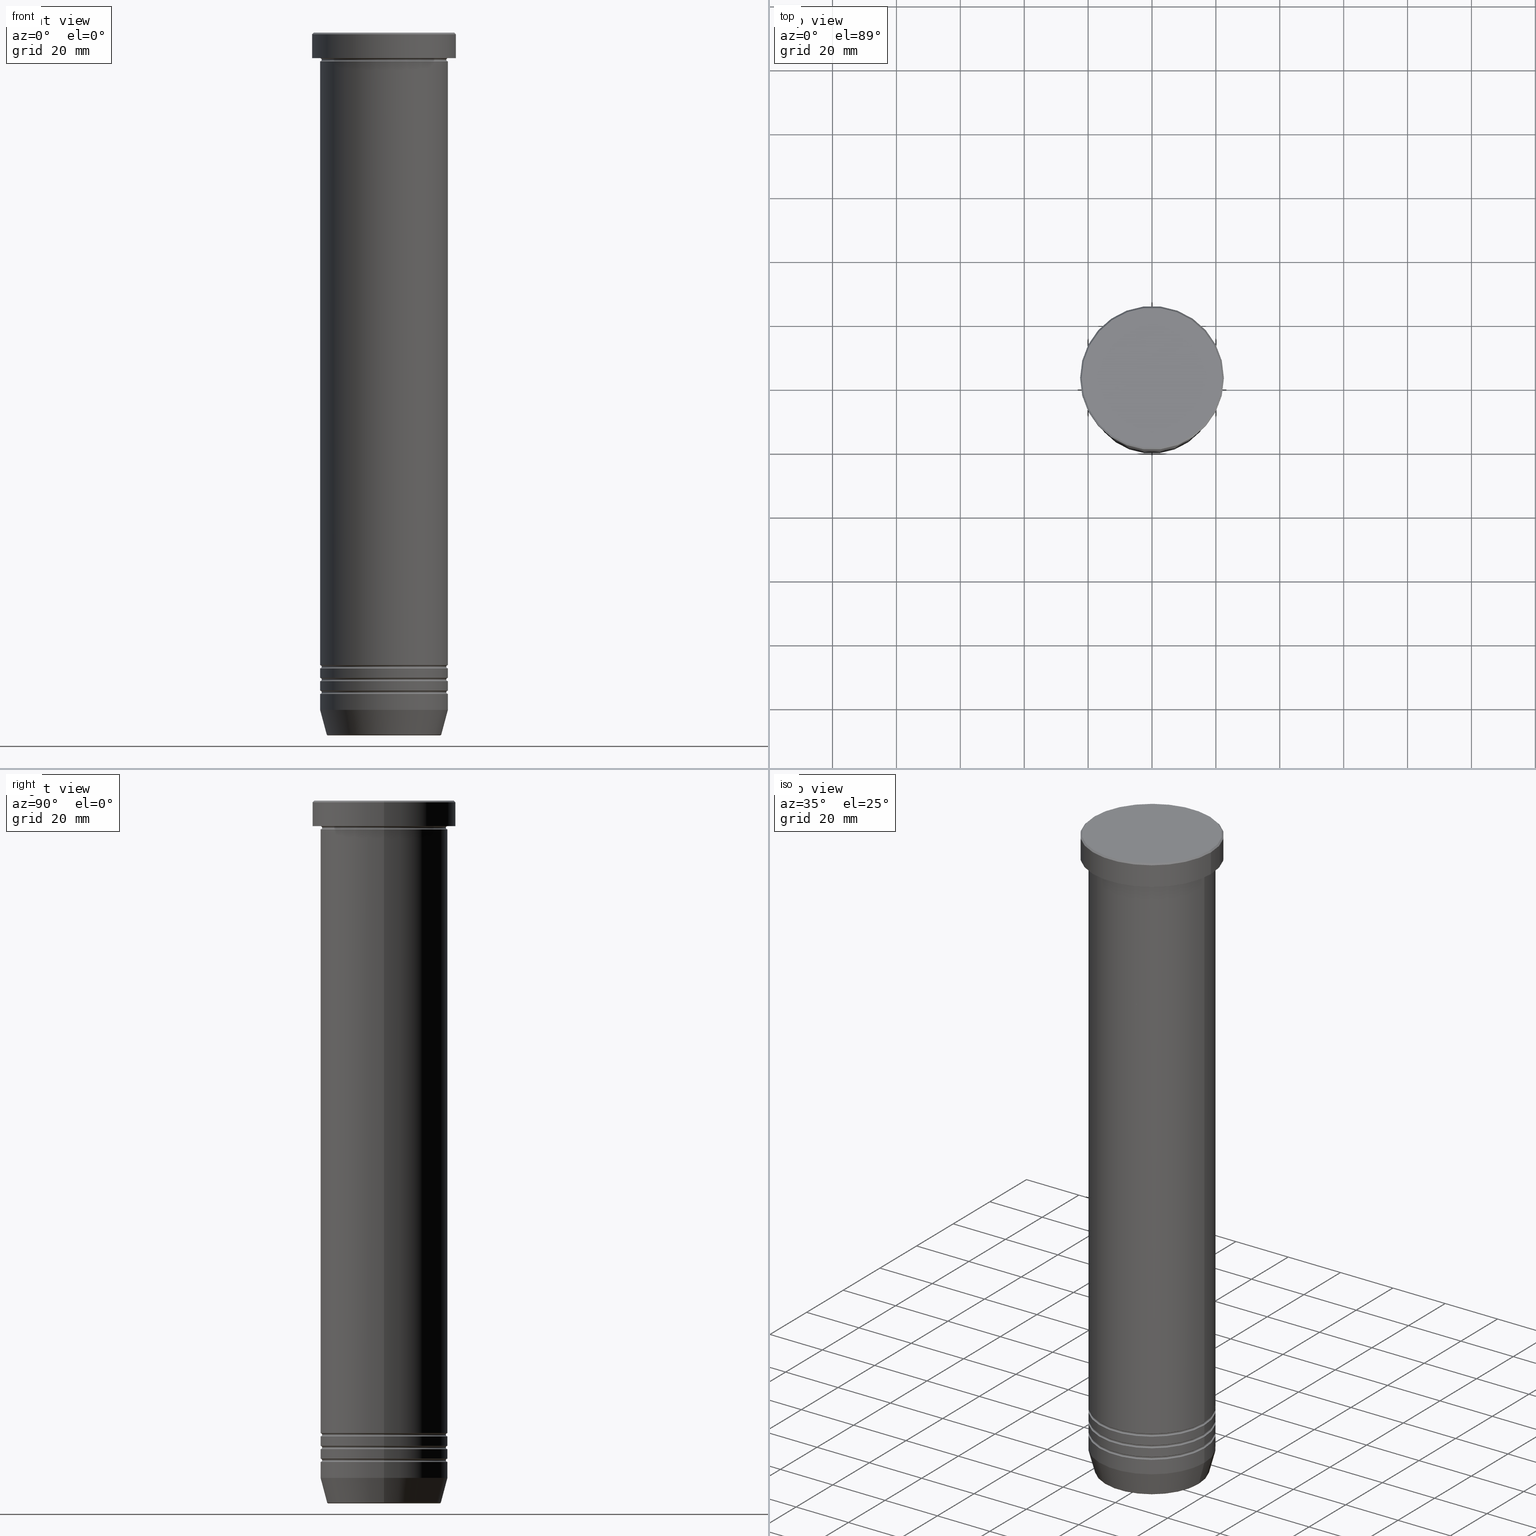
[diagram: canonical four-view strip — front | top / right | iso, engineering-drawing reading convention]
A machine part, canonical four-view strip (front | top / right | iso — engineering-drawing reading convention). The complete STEP part file that produces these views, byte-faithful:
ISO-10303-21;
HEADER;
FILE_DESCRIPTION (( 'STEP AP203' ),
    '1' );
FILE_NAME ('42f1.STEP',
    '2024-01-02T18:50:44',
    ( '' ),
    ( '' ),
    'SwSTEP 2.0',
    'SolidWorks 2019',
    '' );
FILE_SCHEMA (( 'CONFIG_CONTROL_DESIGN' ));
ENDSEC;

DATA;
#1 = DIRECTION ( 'NONE',  ( -1.000000000000000000, 0.000000000000000000, 0.000000000000000000 ) ) ;
#2 = FACE_OUTER_BOUND ( 'NONE', #201, .T. ) ;
#3 = VERTEX_POINT ( 'NONE', #493 ) ;
#4 = LINE ( 'NONE', #657, #1048 ) ;
#5 = DIRECTION ( 'NONE',  ( 1.000000000000000000, 0.000000000000000000, 0.000000000000000000 ) ) ;
#6 = DIRECTION ( 'NONE',  ( 1.000000000000000000, 0.000000000000000000, 0.000000000000000000 ) ) ;
#7 = FACE_OUTER_BOUND ( 'NONE', #415, .T. ) ;
#8 = ORIENTED_EDGE ( 'NONE', *, *, #477, .T. ) ;
#9 = DIRECTION ( 'NONE',  ( -0.000000000000000000, -0.000000000000000000, 1.000000000000000000 ) ) ;
#10 = CARTESIAN_POINT ( 'NONE',  ( -22.50000000000000000, 2.755455298081544778E-15, -0.5000000000000004441 ) ) ;
#11 = CARTESIAN_POINT ( 'NONE',  ( 0.000000000000000000, 0.000000000000000000, 0.000000000000000000 ) ) ;
#12 = ORIENTED_EDGE ( 'NONE', *, *, #761, .T. ) ;
#13 = ADVANCED_FACE ( 'NONE', ( #919 ), #414, .F. ) ;
#14 = DIRECTION ( 'NONE',  ( 0.000000000000000000, -1.000000000000000000, 0.000000000000000000 ) ) ;
#15 = AXIS2_PLACEMENT_3D ( 'NONE', #918, #327, #174 ) ;
#16 = VECTOR ( 'NONE', #582, 1000.000000000000000 ) ;
#17 = DIRECTION ( 'NONE',  ( -0.000000000000000000, -0.000000000000000000, 1.000000000000000000 ) ) ;
#18 = LOCAL_TIME ( 19, 50, 44.00000000000000000, #252 ) ;
#19 = ORIENTED_EDGE ( 'NONE', *, *, #195, .T. ) ;
#20 = CYLINDRICAL_SURFACE ( 'NONE', #1019, 19.99999999999999645 ) ;
#21 = EDGE_LOOP ( 'NONE', ( #1038, #423 ) ) ;
#22 = DIRECTION ( 'NONE',  ( 0.000000000000000000, 0.000000000000000000, -1.000000000000000000 ) ) ;
#23 = ORIENTED_EDGE ( 'NONE', *, *, #359, .F. ) ;
#24 = EDGE_LOOP ( 'NONE', ( #168, #783, #443, #880 ) ) ;
#25 = EDGE_CURVE ( 'NONE', #3, #899, #1000, .T. ) ;
#26 = FACE_OUTER_BOUND ( 'NONE', #259, .T. ) ;
#27 = EDGE_CURVE ( 'NONE', #861, #747, #81, .T. ) ;
#28 = ORIENTED_EDGE ( 'NONE', *, *, #724, .F. ) ;
#29 = DIRECTION ( 'NONE',  ( 1.224646799147353207E-16, 1.000000000000000000, 0.000000000000000000 ) ) ;
#30 = AXIS2_PLACEMENT_3D ( 'NONE', #853, #279, #355 ) ;
#31 = CARTESIAN_POINT ( 'NONE',  ( 0.000000000000000000, 0.000000000000000000, -9.000000000000001776 ) ) ;
#32 = AXIS2_PLACEMENT_3D ( 'NONE', #270, #932, #43 ) ;
#33 = AXIS2_PLACEMENT_3D ( 'NONE', #547, #885, #720 ) ;
#34 = ORIENTED_EDGE ( 'NONE', *, *, #464, .T. ) ;
#35 = APPROVAL_PERSON_ORGANIZATION ( #694, #274, #74 ) ;
#36 = CARTESIAN_POINT ( 'NONE',  ( 20.00000000000000000, 0.000000000000000000, -50.00000000000000000 ) ) ;
#37 = EDGE_CURVE ( 'NONE', #789, #475, #396, .T. ) ;
#38 = CARTESIAN_POINT ( 'NONE',  ( 0.000000000000000000, 22.50000000000000000, -8.000000000000000000 ) ) ;
#39 = CARTESIAN_POINT ( 'NONE',  ( 0.000000000000000000, 0.000000000000000000, -198.5000000000000000 ) ) ;
#40 = VERTEX_POINT ( 'NONE', #10 ) ;
#41 = ORIENTED_EDGE ( 'NONE', *, *, #868, .T. ) ;
#42 = CARTESIAN_POINT ( 'NONE',  ( -19.99999999999999645, 2.449293598294706119E-15, -206.5000000000000284 ) ) ;
#43 = DIRECTION ( 'NONE',  ( 1.000000000000000000, 0.000000000000000000, 0.000000000000000000 ) ) ;
#44 = ORIENTED_EDGE ( 'NONE', *, *, #263, .T. ) ;
#45 = ORIENTED_EDGE ( 'NONE', *, *, #457, .T. ) ;
#46 = CARTESIAN_POINT ( 'NONE',  ( 0.000000000000000000, 0.000000000000000000, -212.0000000000000000 ) ) ;
#47 = AXIS2_PLACEMENT_3D ( 'NONE', #39, #442, #945 ) ;
#48 = EDGE_CURVE ( 'NONE', #93, #676, #348, .T. ) ;
#49 = CIRCLE ( 'NONE', #698, 22.00000000000000711 ) ;
#50 = ORIENTED_EDGE ( 'NONE', *, *, #287, .T. ) ;
#51 = TOROIDAL_SURFACE ( 'NONE', #198, 20.00000000000000000, 0.5000000000000000000 ) ;
#52 = EDGE_LOOP ( 'NONE', ( #97, #882, #110, #516 ) ) ;
#53 = AXIS2_PLACEMENT_3D ( 'NONE', #377, #295, #137 ) ;
#54 = ADVANCED_FACE ( 'NONE', ( #328 ), #714, .F. ) ;
#55 = DIRECTION ( 'NONE',  ( 0.000000000000000000, 0.000000000000000000, -1.000000000000000000 ) ) ;
#56 = EDGE_LOOP ( 'NONE', ( #797, #782 ) ) ;
#57 = DIRECTION ( 'NONE',  ( -0.000000000000000000, -0.000000000000000000, 1.000000000000000000 ) ) ;
#58 = EDGE_CURVE ( 'NONE', #935, #528, #939, .T. ) ;
#59 = ORIENTED_EDGE ( 'NONE', *, *, #546, .F. ) ;
#60 = CARTESIAN_POINT ( 'NONE',  ( 0.000000000000000000, 0.000000000000000000, 0.000000000000000000 ) ) ;
#61 = ORIENTED_EDGE ( 'NONE', *, *, #561, .T. ) ;
#62 = AXIS2_PLACEMENT_3D ( 'NONE', #819, #832, #91 ) ;
#63 = CARTESIAN_POINT ( 'NONE',  ( -19.99999999999999645, 2.449293598294706119E-15, -198.5000000000000000 ) ) ;
#64 = TOROIDAL_SURFACE ( 'NONE', #330, 17.47274296656152615, 0.5000000000000000000 ) ;
#65 = AXIS2_PLACEMENT_3D ( 'NONE', #275, #526, #132 ) ;
#66 = CIRCLE ( 'NONE', #282, 0.5000000000000004441 ) ;
#67 = CARTESIAN_POINT ( 'NONE',  ( 19.99999999999999645, 0.000000000000000000, 0.000000000000000000 ) ) ;
#68 = ORIENTED_EDGE ( 'NONE', *, *, #785, .F. ) ;
#69 = EDGE_CURVE ( 'NONE', #268, #497, #807, .T. ) ;
#70 = CARTESIAN_POINT ( 'NONE',  ( -20.00000000000000000, 0.000000000000000000, -8.500000000000000000 ) ) ;
#71 = CYLINDRICAL_SURFACE ( 'NONE', #316, 19.99999999999999645 ) ;
#72 = DIRECTION ( 'NONE',  ( -0.000000000000000000, -0.000000000000000000, 1.000000000000000000 ) ) ;
#73 = PERSON ( 'NEUR�EN�', 'NEUR�EN�', 'NEUR�EN�', ('NEUR�EN�'), ('NEUR�EN�'), ('NEUR�EN�') ) ;
#74 = APPROVAL_ROLE ( '' ) ;
#75 = DIRECTION ( 'NONE',  ( -0.000000000000000000, -0.000000000000000000, 1.000000000000000000 ) ) ;
#76 = PERSON_AND_ORGANIZATION ( #73, #488 ) ;
#77 = DIRECTION ( 'NONE',  ( 0.000000000000000000, 0.000000000000000000, -1.000000000000000000 ) ) ;
#78 = CLOSED_SHELL ( 'NONE', ( #106, #685, #921, #900, #841, #326, #1047, #947, #533, #387, #394, #364, #310 ) ) ;
#79 = ORIENTED_EDGE ( 'NONE', *, *, #806, .F. ) ;
#80 = PERSON_AND_ORGANIZATION ( #73, #488 ) ;
#81 = CIRCLE ( 'NONE', #99, 0.5000000000000004441 ) ;
#82 = VECTOR ( 'NONE', #321, 1000.000000000000000 ) ;
#83 = DIRECTION ( 'NONE',  ( 0.000000000000000000, -1.000000000000000000, 0.000000000000000000 ) ) ;
#84 = AXIS2_PLACEMENT_3D ( 'NONE', #169, #993, #92 ) ;
#85 = CARTESIAN_POINT ( 'NONE',  ( 0.000000000000000000, 0.000000000000000000, -198.5000000000000000 ) ) ;
#86 = EDGE_CURVE ( 'NONE', #380, #789, #992, .T. ) ;
#87 = ORIENTED_EDGE ( 'NONE', *, *, #1042, .F. ) ;
#88 = ORIENTED_EDGE ( 'NONE', *, *, #138, .T. ) ;
#89 = CARTESIAN_POINT ( 'NONE',  ( 20.00000000000000000, 0.000000000000000000, -8.500000000000000000 ) ) ;
#90 = CYLINDRICAL_SURFACE ( 'NONE', #280, 20.00000000000000000 ) ;
#91 = DIRECTION ( 'NONE',  ( 1.000000000000000000, 0.000000000000000000, 0.000000000000000000 ) ) ;
#92 = DIRECTION ( 'NONE',  ( 1.000000000000000000, 0.000000000000000000, 0.000000000000000000 ) ) ;
#93 = VERTEX_POINT ( 'NONE', #737 ) ;
#94 = PERSON_AND_ORGANIZATION ( #73, #488 ) ;
#95 = DIRECTION ( 'NONE',  ( -0.000000000000000000, -0.000000000000000000, 1.000000000000000000 ) ) ;
#96 = CARTESIAN_POINT ( 'NONE',  ( 20.00000000000000000, 2.449293598294706513E-15, -8.000000000000000000 ) ) ;
#97 = ORIENTED_EDGE ( 'NONE', *, *, #269, .F. ) ;
#98 = CARTESIAN_POINT ( 'NONE',  ( 22.00000000000000711, 2.724839128102860991E-15, 0.000000000000000000 ) ) ;
#99 = AXIS2_PLACEMENT_3D ( 'NONE', #340, #412, #318 ) ;
#100 = VECTOR ( 'NONE', #566, 1000.000000000000000 ) ;
#101 = AXIS2_PLACEMENT_3D ( 'NONE', #525, #894, #616 ) ;
#102 = CARTESIAN_POINT ( 'NONE',  ( -19.99999999999999645, 2.449293598294706119E-15, 0.000000000000000000 ) ) ;
#103 = AXIS2_PLACEMENT_3D ( 'NONE', #1057, #643, #373 ) ;
#104 = ORIENTED_EDGE ( 'NONE', *, *, #949, .T. ) ;
#105 = ORIENTED_EDGE ( 'NONE', *, *, #655, .F. ) ;
#106 = ADVANCED_FACE ( 'NONE', ( #151 ), #569, .T. ) ;
#107 = ORIENTED_EDGE ( 'NONE', *, *, #884, .F. ) ;
#108 = DIRECTION ( 'NONE',  ( -0.000000000000000000, -0.000000000000000000, 1.000000000000000000 ) ) ;
#109 = ADVANCED_FACE ( 'NONE', ( #568 ), #976, .F. ) ;
#110 = ORIENTED_EDGE ( 'NONE', *, *, #495, .T. ) ;
#111 = ORIENTED_EDGE ( 'NONE', *, *, #914, .F. ) ;
#112 = FACE_OUTER_BOUND ( 'NONE', #1025, .T. ) ;
#113 = CIRCLE ( 'NONE', #311, 20.00000000000000000 ) ;
#114 = AXIS2_PLACEMENT_3D ( 'NONE', #343, #514, #678 ) ;
#115 = CIRCLE ( 'NONE', #736, 0.5000000000000004441 ) ;
#116 = ORIENTED_EDGE ( 'NONE', *, *, #1055, .F. ) ;
#117 = DIRECTION ( 'NONE',  ( -1.000000000000000000, 1.224646799147349509E-16, 0.000000000000000000 ) ) ;
#118 = DIRECTION ( 'NONE',  ( -0.000000000000000000, -0.000000000000000000, 1.000000000000000000 ) ) ;
#119 = DIRECTION ( 'NONE',  ( -0.000000000000000000, -0.000000000000000000, 1.000000000000000000 ) ) ;
#120 = ORIENTED_EDGE ( 'NONE', *, *, #636, .F. ) ;
#121 = ORIENTED_EDGE ( 'NONE', *, *, #984, .T. ) ;
#122 = CYLINDRICAL_SURFACE ( 'NONE', #847, 19.99999999999999645 ) ;
#123 = DIRECTION ( 'NONE',  ( 1.000000000000000000, 0.000000000000000000, 0.000000000000000000 ) ) ;
#124 = ORIENTED_EDGE ( 'NONE', *, *, #332, .T. ) ;
#125 = ADVANCED_FACE ( 'NONE', ( #651 ), #276, .T. ) ;
#126 = DIRECTION ( 'NONE',  ( -1.224646799147353207E-16, 1.000000000000000000, 0.000000000000000000 ) ) ;
#127 =( LENGTH_UNIT ( ) NAMED_UNIT ( * ) SI_UNIT ( .MILLI., .METRE. ) );
#128 = AXIS2_PLACEMENT_3D ( 'NONE', #551, #462, #878 ) ;
#129 = TOROIDAL_SURFACE ( 'NONE', #520, 19.99999999999999645, 0.5000000000000000000 ) ;
#130 = ORIENTED_EDGE ( 'NONE', *, *, #507, .F. ) ;
#131 = AXIS2_PLACEMENT_3D ( 'NONE', #545, #1054, #304 ) ;
#132 = DIRECTION ( 'NONE',  ( 0.000000000000000000, 0.000000000000000000, -1.000000000000000000 ) ) ;
#133 = EDGE_CURVE ( 'NONE', #969, #668, #113, .T. ) ;
#134 = DIRECTION ( 'NONE',  ( 0.000000000000000000, 0.000000000000000000, -1.000000000000000000 ) ) ;
#135 = CARTESIAN_POINT ( 'NONE',  ( 0.000000000000000000, 0.000000000000000000, 0.000000000000000000 ) ) ;
#136 = CARTESIAN_POINT ( 'NONE',  ( -20.00000000000000000, 2.449293598294706513E-15, 0.000000000000000000 ) ) ;
#137 = DIRECTION ( 'NONE',  ( 0.000000000000000000, 0.000000000000000000, -1.000000000000000000 ) ) ;
#138 = EDGE_CURVE ( 'NONE', #589, #747, #262, .T. ) ;
#139 = ORIENTED_EDGE ( 'NONE', *, *, #410, .T. ) ;
#140 = CARTESIAN_POINT ( 'NONE',  ( 0.000000000000000000, 0.000000000000000000, -212.0000000000000000 ) ) ;
#141 = ORIENTED_EDGE ( 'NONE', *, *, #27, .T. ) ;
#142 = DIRECTION ( 'NONE',  ( 1.000000000000000000, 0.000000000000000000, 0.000000000000000000 ) ) ;
#143 = CARTESIAN_POINT ( 'NONE',  ( -19.49999999999999645, 2.418677428316021937E-15, -206.5000000000000284 ) ) ;
#144 = DIRECTION ( 'NONE',  ( -0.000000000000000000, -0.000000000000000000, 1.000000000000000000 ) ) ;
#145 = CARTESIAN_POINT ( 'NONE',  ( -19.99999999999999645, 2.449293598294706119E-15, -202.5000000000000000 ) ) ;
#146 = EDGE_CURVE ( 'NONE', #747, #589, #242, .T. ) ;
#147 = CIRCLE ( 'NONE', #228, 0.5000000000000004441 ) ;
#148 = AXIS2_PLACEMENT_3D ( 'NONE', #542, #144, #981 ) ;
#149 = ORIENTED_EDGE ( 'NONE', *, *, #86, .F. ) ;
#150 = DIRECTION ( 'NONE',  ( 0.000000000000000000, 0.000000000000000000, -1.000000000000000000 ) ) ;
#151 = FACE_OUTER_BOUND ( 'NONE', #388, .T. ) ;
#152 = DIRECTION ( 'NONE',  ( 1.000000000000000000, 0.000000000000000000, 0.000000000000000000 ) ) ;
#153 = DIRECTION ( 'NONE',  ( 1.000000000000000000, 0.000000000000000000, 0.000000000000000000 ) ) ;
#154 = DATE_AND_TIME ( #560, #317 ) ;
#155 = DIRECTION ( 'NONE',  ( 1.000000000000000000, 0.000000000000000000, 0.000000000000000000 ) ) ;
#156 = DIRECTION ( 'NONE',  ( 0.000000000000000000, 0.000000000000000000, -1.000000000000000000 ) ) ;
#157 = DIRECTION ( 'NONE',  ( 1.000000000000000000, 0.000000000000000000, 0.000000000000000000 ) ) ;
#158 = ORIENTED_EDGE ( 'NONE', *, *, #908, .F. ) ;
#159 = CIRCLE ( 'NONE', #860, 19.50000000000000000 ) ;
#160 = AXIS2_PLACEMENT_3D ( 'NONE', #876, #656, #549 ) ;
#161 = CARTESIAN_POINT ( 'NONE',  ( 20.00000000000000000, 0.000000000000000000, -199.0000000000000000 ) ) ;
#162 = AXIS2_PLACEMENT_3D ( 'NONE', #255, #850, #508 ) ;
#163 = DIRECTION ( 'NONE',  ( -0.000000000000000000, -1.000000000000000000, -0.000000000000000000 ) ) ;
#164 = CARTESIAN_POINT ( 'NONE',  ( 0.000000000000000000, 0.000000000000000000, -50.00000000000000000 ) ) ;
#165 = DIRECTION ( 'NONE',  ( -0.000000000000000000, -0.000000000000000000, 1.000000000000000000 ) ) ;
#166 = ORIENTED_EDGE ( 'NONE', *, *, #937, .F. ) ;
#167 = CARTESIAN_POINT ( 'NONE',  ( 20.00000000000000000, 0.000000000000000000, -50.00000000000000000 ) ) ;
#168 = ORIENTED_EDGE ( 'NONE', *, *, #735, .F. ) ;
#169 = CARTESIAN_POINT ( 'NONE',  ( 0.000000000000000000, 0.000000000000000000, -220.0000000000000284 ) ) ;
#170 = EDGE_LOOP ( 'NONE', ( #121, #44, #302, #59 ) ) ;
#171 = APPROVAL_STATUS ( 'not_yet_approved' ) ;
#172 = EDGE_CURVE ( 'NONE', #550, #40, #362, .T. ) ;
#173 = ORIENTED_EDGE ( 'NONE', *, *, #464, .F. ) ;
#174 = DIRECTION ( 'NONE',  ( 1.000000000000000000, 0.000000000000000000, 0.000000000000000000 ) ) ;
#175 = CARTESIAN_POINT ( 'NONE',  ( 0.000000000000000000, 0.000000000000000000, -201.9999999999999716 ) ) ;
#176 = CARTESIAN_POINT ( 'NONE',  ( -19.50000000000000000, 2.418677428316022726E-15, -8.500000000000000000 ) ) ;
#177 = EDGE_CURVE ( 'NONE', #293, #929, #922, .T. ) ;
#178 = ORIENTED_EDGE ( 'NONE', *, *, #970, .F. ) ;
#179 = AXIS2_PLACEMENT_3D ( 'NONE', #218, #799, #1040 ) ;
#180 = CIRCLE ( 'NONE', #536, 0.5000000000000004441 ) ;
#181 = DIRECTION ( 'NONE',  ( 1.000000000000000000, 0.000000000000000000, 0.000000000000000000 ) ) ;
#182 = AXIS2_PLACEMENT_3D ( 'NONE', #510, #430, #193 ) ;
#183 = DIRECTION ( 'NONE',  ( 1.000000000000000000, 0.000000000000000000, 0.000000000000000000 ) ) ;
#184 = DIRECTION ( 'NONE',  ( -0.000000000000000000, -0.000000000000000000, 1.000000000000000000 ) ) ;
#185 = VERTEX_POINT ( 'NONE', #190 ) ;
#186 = CARTESIAN_POINT ( 'NONE',  ( 0.000000000000000000, 0.000000000000000000, -202.5000000000000000 ) ) ;
#187 = CALENDAR_DATE ( 2024, 2, 1 ) ;
#188 = VERTEX_POINT ( 'NONE', #679 ) ;
#189 = EDGE_CURVE ( 'NONE', #929, #293, #906, .T. ) ;
#190 = CARTESIAN_POINT ( 'NONE',  ( -20.00000000000000000, 2.449293598294706513E-15, -207.0000000000000000 ) ) ;
#191 = ORIENTED_EDGE ( 'NONE', *, *, #406, .F. ) ;
#192 = ORIENTED_EDGE ( 'NONE', *, *, #1028, .F. ) ;
#193 = DIRECTION ( 'NONE',  ( 1.000000000000000000, 0.000000000000000000, 0.000000000000000000 ) ) ;
#194 = DIRECTION ( 'NONE',  ( 0.000000000000000000, 0.000000000000000000, -1.000000000000000000 ) ) ;
#195 = EDGE_CURVE ( 'NONE', #861, #955, #159, .T. ) ;
#196 = CARTESIAN_POINT ( 'NONE',  ( 0.000000000000000000, 0.000000000000000000, -8.500000000000000000 ) ) ;
#197 = AXIS2_PLACEMENT_3D ( 'NONE', #1050, #792, #363 ) ;
#198 = AXIS2_PLACEMENT_3D ( 'NONE', #659, #421, #281 ) ;
#199 = ORIENTED_EDGE ( 'NONE', *, *, #457, .F. ) ;
#200 = CIRCLE ( 'NONE', #812, 20.00000000000000000 ) ;
#201 = EDGE_LOOP ( 'NONE', ( #214, #260, #307, #239 ) ) ;
#202 = DIRECTION ( 'NONE',  ( 1.000000000000000000, 0.000000000000000000, 0.000000000000000000 ) ) ;
#203 = CARTESIAN_POINT ( 'NONE',  ( 0.000000000000000000, 0.000000000000000000, -220.0000000000000284 ) ) ;
#204 = ORIENTED_EDGE ( 'NONE', *, *, #914, .T. ) ;
#205 = EDGE_CURVE ( 'NONE', #641, #439, #469, .T. ) ;
#206 = ORIENTED_EDGE ( 'NONE', *, *, #133, .T. ) ;
#207 = ADVANCED_FACE ( 'NONE', ( #601 ), #502, .F. ) ;
#208 = DIRECTION ( 'NONE',  ( 1.000000000000000000, 0.000000000000000000, 0.000000000000000000 ) ) ;
#209 = DIRECTION ( 'NONE',  ( 1.000000000000000000, 0.000000000000000000, 0.000000000000000000 ) ) ;
#210 = CC_DESIGN_PERSON_AND_ORGANIZATION_ASSIGNMENT ( #440, #298, ( #865 ) ) ;
#211 =( NAMED_UNIT ( * ) PLANE_ANGLE_UNIT ( ) SI_UNIT ( $, .RADIAN. ) );
#212 = AXIS2_PLACEMENT_3D ( 'NONE', #235, #483, #866 ) ;
#213 = AXIS2_PLACEMENT_3D ( 'NONE', #203, #265, #427 ) ;
#214 = ORIENTED_EDGE ( 'NONE', *, *, #344, .T. ) ;
#215 = CIRCLE ( 'NONE', #369, 20.00000000000000000 ) ;
#216 = EDGE_LOOP ( 'NONE', ( #765, #278 ) ) ;
#217 = AXIS2_PLACEMENT_3D ( 'NONE', #968, #725, #1041 ) ;
#218 = CARTESIAN_POINT ( 'NONE',  ( 0.000000000000000000, 0.000000000000000000, -202.5000000000000000 ) ) ;
#219 = DIRECTION ( 'NONE',  ( -0.000000000000000000, -0.000000000000000000, 1.000000000000000000 ) ) ;
#220 = ORIENTED_EDGE ( 'NONE', *, *, #901, .F. ) ;
#221 = FACE_OUTER_BOUND ( 'NONE', #540, .T. ) ;
#222 = CC_DESIGN_DATE_AND_TIME_ASSIGNMENT ( #573, #579, ( #944 ) ) ;
#223 = DIRECTION ( 'NONE',  ( 0.000000000000000000, 0.000000000000000000, -1.000000000000000000 ) ) ;
#224 = ORIENTED_EDGE ( 'NONE', *, *, #172, .F. ) ;
#225 = CARTESIAN_POINT ( 'NONE',  ( 20.00000000000000000, 0.000000000000000000, -207.0000000000000000 ) ) ;
#226 = CIRCLE ( 'NONE', #32, 19.99999999999999289 ) ;
#227 = EDGE_CURVE ( 'NONE', #668, #528, #640, .T. ) ;
#228 = AXIS2_PLACEMENT_3D ( 'NONE', #145, #1030, #951 ) ;
#229 = LOCAL_TIME ( 19, 50, 44.00000000000000000, #441 ) ;
#230 = EDGE_LOOP ( 'NONE', ( #941, #425, #337, #250 ) ) ;
#231 = DIRECTION ( 'NONE',  ( 0.000000000000000000, 0.000000000000000000, -1.000000000000000000 ) ) ;
#232 = CARTESIAN_POINT ( 'NONE',  ( 0.000000000000000000, 0.000000000000000000, -203.0000000000000000 ) ) ;
#233 = DIRECTION ( 'NONE',  ( -0.000000000000000000, -0.000000000000000000, 1.000000000000000000 ) ) ;
#234 = CARTESIAN_POINT ( 'NONE',  ( 19.99999999999999645, 0.000000000000000000, -202.5000000000000000 ) ) ;
#235 = CARTESIAN_POINT ( 'NONE',  ( 0.000000000000000000, 0.000000000000000000, -198.5000000000000000 ) ) ;
#236 = DIRECTION ( 'NONE',  ( -0.000000000000000000, -0.000000000000000000, 1.000000000000000000 ) ) ;
#237 = ORIENTED_EDGE ( 'NONE', *, *, #444, .T. ) ;
#238 = DIRECTION ( 'NONE',  ( 1.000000000000000000, 0.000000000000000000, 0.000000000000000000 ) ) ;
#239 = ORIENTED_EDGE ( 'NONE', *, *, #332, .F. ) ;
#240 = LINE ( 'NONE', #753, #700 ) ;
#241 = ORIENTED_EDGE ( 'NONE', *, *, #593, .T. ) ;
#242 = CIRCLE ( 'NONE', #843, 20.00000000000000000 ) ;
#243 = TOROIDAL_SURFACE ( 'NONE', #160, 19.99999999999999645, 0.5000000000000000000 ) ;
#244 = AXIS2_PLACEMENT_3D ( 'NONE', #341, #236, #247 ) ;
#245 = PERSON_AND_ORGANIZATION ( #73, #488 ) ;
#246 = ORIENTED_EDGE ( 'NONE', *, *, #189, .F. ) ;
#247 = DIRECTION ( 'NONE',  ( 1.000000000000000000, 0.000000000000000000, 0.000000000000000000 ) ) ;
#248 = ORIENTED_EDGE ( 'NONE', *, *, #133, .F. ) ;
#249 = CALENDAR_DATE ( 2024, 2, 1 ) ;
#250 = ORIENTED_EDGE ( 'NONE', *, *, #767, .T. ) ;
#251 = DIRECTION ( 'NONE',  ( 1.000000000000000000, 0.000000000000000000, 0.000000000000000000 ) ) ;
#252 = COORDINATED_UNIVERSAL_TIME_OFFSET ( 1, 0, .AHEAD. ) ;
#253 = ADVANCED_FACE ( 'NONE', ( #375 ), #886, .F. ) ;
#254 = ORIENTED_EDGE ( 'NONE', *, *, #515, .F. ) ;
#255 = CARTESIAN_POINT ( 'NONE',  ( 0.000000000000000000, 0.000000000000000000, -220.0000000000000284 ) ) ;
#256 = ORIENTED_EDGE ( 'NONE', *, *, #750, .F. ) ;
#257 = DIRECTION ( 'NONE',  ( 0.000000000000000000, 0.000000000000000000, -1.000000000000000000 ) ) ;
#258 = CARTESIAN_POINT ( 'NONE',  ( -19.99999999999999645, 0.000000000000000000, -206.5000000000000284 ) ) ;
#259 = EDGE_LOOP ( 'NONE', ( #471, #614, #237, #353 ) ) ;
#260 = ORIENTED_EDGE ( 'NONE', *, *, #769, .T. ) ;
#261 = CARTESIAN_POINT ( 'NONE',  ( 0.000000000000000000, 0.000000000000000000, -219.5000000000000284 ) ) ;
#262 = CIRCLE ( 'NONE', #845, 20.00000000000000000 ) ;
#263 = EDGE_CURVE ( 'NONE', #899, #188, #431, .T. ) ;
#264 = AXIS2_PLACEMENT_3D ( 'NONE', #42, #29, #117 ) ;
#265 = DIRECTION ( 'NONE',  ( 0.000000000000000000, 0.000000000000000000, -1.000000000000000000 ) ) ;
#266 = AXIS2_PLACEMENT_3D ( 'NONE', #570, #165, #157 ) ;
#267 = CC_DESIGN_APPROVAL ( #274, ( #865 ) ) ;
#268 = VERTEX_POINT ( 'NONE', #702 ) ;
#269 = EDGE_CURVE ( 'NONE', #93, #747, #628, .T. ) ;
#270 = CARTESIAN_POINT ( 'NONE',  ( 0.000000000000000000, 0.000000000000000000, -206.0000000000000284 ) ) ;
#271 = DIRECTION ( 'NONE',  ( 1.000000000000000000, 0.000000000000000000, 0.000000000000000000 ) ) ;
#272 = ORIENTED_EDGE ( 'NONE', *, *, #990, .T. ) ;
#273 = EDGE_LOOP ( 'NONE', ( #691, #141, #314, #105 ) ) ;
#274 = APPROVAL ( #434, 'NEUR�EN�' ) ;
#275 = CARTESIAN_POINT ( 'NONE',  ( -19.99999999999999645, 0.000000000000000000, -202.5000000000000000 ) ) ;
#276 = CYLINDRICAL_SURFACE ( 'NONE', #365, 19.99999999999999645 ) ;
#277 = DIRECTION ( 'NONE',  ( -0.000000000000000000, -0.000000000000000000, 1.000000000000000000 ) ) ;
#278 = ORIENTED_EDGE ( 'NONE', *, *, #189, .T. ) ;
#279 = DIRECTION ( 'NONE',  ( -0.000000000000000000, -0.000000000000000000, 1.000000000000000000 ) ) ;
#280 = AXIS2_PLACEMENT_3D ( 'NONE', #562, #9, #251 ) ;
#281 = DIRECTION ( 'NONE',  ( 1.000000000000000000, 0.000000000000000000, 0.000000000000000000 ) ) ;
#282 = AXIS2_PLACEMENT_3D ( 'NONE', #485, #828, #920 ) ;
#283 = ORIENTED_EDGE ( 'NONE', *, *, #724, .T. ) ;
#284 = CC_DESIGN_APPROVAL ( #554, ( #944 ) ) ;
#285 = DIRECTION ( 'NONE',  ( -0.000000000000000000, -0.000000000000000000, 1.000000000000000000 ) ) ;
#286 = CARTESIAN_POINT ( 'NONE',  ( 0.000000000000000000, 0.000000000000000000, 0.000000000000000000 ) ) ;
#287 = EDGE_CURVE ( 'NONE', #40, #550, #997, .T. ) ;
#288 = VERTEX_POINT ( 'NONE', #143 ) ;
#289 = ORIENTED_EDGE ( 'NONE', *, *, #495, .F. ) ;
#290 = CARTESIAN_POINT ( 'NONE',  ( 0.000000000000000000, 0.000000000000000000, 0.000000000000000000 ) ) ;
#291 = CARTESIAN_POINT ( 'NONE',  ( 0.000000000000000000, 20.00000000000000000, -50.00000000000000000 ) ) ;
#292 = CARTESIAN_POINT ( 'NONE',  ( 0.000000000000000000, 0.000000000000000000, -202.5000000000000000 ) ) ;
#293 = VERTEX_POINT ( 'NONE', #1044 ) ;
#294 = CARTESIAN_POINT ( 'NONE',  ( 20.00000000000000000, 0.000000000000000000, -9.000000000000001776 ) ) ;
#295 = DIRECTION ( 'NONE',  ( 0.000000000000000000, -1.000000000000000000, 0.000000000000000000 ) ) ;
#296 = AXIS2_PLACEMENT_3D ( 'NONE', #286, #618, #891 ) ;
#297 = TOROIDAL_SURFACE ( 'NONE', #909, 20.00000000000000000, 0.5000000000000000000 ) ;
#298 = PERSON_AND_ORGANIZATION_ROLE ( 'creator' ) ;
#299 = CIRCLE ( 'NONE', #266, 19.99999999999999289 ) ;
#300 = CARTESIAN_POINT ( 'NONE',  ( -19.99999999999999645, 2.449293598294706119E-15, 0.000000000000000000 ) ) ;
#301 = CARTESIAN_POINT ( 'NONE',  ( 20.00000000000000000, 0.000000000000000000, 0.000000000000000000 ) ) ;
#302 = ORIENTED_EDGE ( 'NONE', *, *, #970, .T. ) ;
#303 = DIRECTION ( 'NONE',  ( -0.000000000000000000, -0.000000000000000000, 1.000000000000000000 ) ) ;
#304 = DIRECTION ( 'NONE',  ( 1.000000000000000000, 0.000000000000000000, 0.000000000000000000 ) ) ;
#305 = ORIENTED_EDGE ( 'NONE', *, *, #624, .F. ) ;
#306 = EDGE_LOOP ( 'NONE', ( #517, #749, #178, #79 ) ) ;
#307 = ORIENTED_EDGE ( 'NONE', *, *, #761, .F. ) ;
#308 = DIRECTION ( 'NONE',  ( 0.000000000000000000, 0.000000000000000000, -1.000000000000000000 ) ) ;
#309 = DIRECTION ( 'NONE',  ( -0.000000000000000000, -0.000000000000000000, 1.000000000000000000 ) ) ;
#310 = ADVANCED_FACE ( 'NONE', ( #877 ), #772, .T. ) ;
#311 = AXIS2_PLACEMENT_3D ( 'NONE', #1017, #119, #512 ) ;
#312 = AXIS2_PLACEMENT_3D ( 'NONE', #535, #887, #153 ) ;
#313 = ADVANCED_FACE ( 'NONE', ( #796 ), #64, .T. ) ;
#314 = ORIENTED_EDGE ( 'NONE', *, *, #146, .T. ) ;
#315 = SECURITY_CLASSIFICATION_LEVEL ( 'unclassified' ) ;
#316 = AXIS2_PLACEMENT_3D ( 'NONE', #1052, #219, #461 ) ;
#317 = LOCAL_TIME ( 19, 50, 44.00000000000000000, #391 ) ;
#318 = DIRECTION ( 'NONE',  ( -1.000000000000000000, 1.224646799147349509E-16, 0.000000000000000000 ) ) ;
#319 = DIRECTION ( 'NONE',  ( -0.000000000000000000, -0.000000000000000000, 1.000000000000000000 ) ) ;
#320 = VERTEX_POINT ( 'NONE', #225 ) ;
#321 = DIRECTION ( 'NONE',  ( -0.000000000000000000, -0.000000000000000000, 1.000000000000000000 ) ) ;
#322 = PERSON_AND_ORGANIZATION_ROLE ( 'design_owner' ) ;
#323 = DIRECTION ( 'NONE',  ( 1.000000000000000000, 0.000000000000000000, 0.000000000000000000 ) ) ;
#324 = DIRECTION ( 'NONE',  ( -1.000000000000000000, 1.224646799147349509E-16, 0.000000000000000000 ) ) ;
#325 = VERTEX_POINT ( 'NONE', #460 ) ;
#326 = ADVANCED_FACE ( 'NONE', ( #971 ), #1037, .T. ) ;
#327 = DIRECTION ( 'NONE',  ( 0.000000000000000000, 0.000000000000000000, -1.000000000000000000 ) ) ;
#328 = FACE_OUTER_BOUND ( 'NONE', #721, .T. ) ;
#329 = CARTESIAN_POINT ( 'NONE',  ( -17.47274296656152615, 2.139793874632399988E-15, -219.5000000000000284 ) ) ;
#330 = AXIS2_PLACEMENT_3D ( 'NONE', #454, #637, #541 ) ;
#331 = AXIS2_PLACEMENT_3D ( 'NONE', #705, #620, #956 ) ;
#332 = EDGE_CURVE ( 'NONE', #409, #869, #958, .T. ) ;
#333 = AXIS2_PLACEMENT_3D ( 'NONE', #532, #368, #271 ) ;
#334 = CIRCLE ( 'NONE', #148, 17.95570587970604848 ) ;
#335 = DIRECTION ( 'NONE',  ( -1.000000000000000000, 0.000000000000000000, 0.000000000000000000 ) ) ;
#336 = ORIENTED_EDGE ( 'NONE', *, *, #48, .F. ) ;
#337 = ORIENTED_EDGE ( 'NONE', *, *, #546, .T. ) ;
#338 = CARTESIAN_POINT ( 'NONE',  ( 0.000000000000000000, 0.000000000000000000, 0.000000000000000000 ) ) ;
#339 = DATE_AND_TIME ( #584, #18 ) ;
#340 = CARTESIAN_POINT ( 'NONE',  ( -20.00000000000000000, 2.449293598294706513E-15, -8.500000000000000000 ) ) ;
#341 = CARTESIAN_POINT ( 'NONE',  ( 0.000000000000000000, 0.000000000000000000, 0.000000000000000000 ) ) ;
#342 = ORIENTED_EDGE ( 'NONE', *, *, #895, .F. ) ;
#343 = CARTESIAN_POINT ( 'NONE',  ( 20.00000000000000000, 2.449293598294706513E-15, -8.500000000000000000 ) ) ;
#344 = EDGE_CURVE ( 'NONE', #409, #376, #519, .T. ) ;
#345 = EDGE_LOOP ( 'NONE', ( #19, #602, #509, #1053 ) ) ;
#346 = ADVANCED_FACE ( 'NONE', ( #802 ), #871, .T. ) ;
#347 = FACE_OUTER_BOUND ( 'NONE', #912, .T. ) ;
#348 = CIRCLE ( 'NONE', #733, 20.00000000000000000 ) ;
#349 = APPROVAL_DATE_TIME ( #154, #274 ) ;
#350 = CIRCLE ( 'NONE', #667, 22.00000000000000711 ) ;
#351 = DATE_TIME_ROLE ( 'creation_date' ) ;
#352 = CARTESIAN_POINT ( 'NONE',  ( 0.000000000000000000, 0.000000000000000000, -8.000000000000000000 ) ) ;
#353 = ORIENTED_EDGE ( 'NONE', *, *, #172, .T. ) ;
#354 = DIRECTION ( 'NONE',  ( -1.000000000000000000, 0.000000000000000000, -0.000000000000000000 ) ) ;
#355 = DIRECTION ( 'NONE',  ( -1.000000000000000000, 0.000000000000000000, 0.000000000000000000 ) ) ;
#356 = ORIENTED_EDGE ( 'NONE', *, *, #767, .F. ) ;
#357 = DIRECTION ( 'NONE',  ( -0.000000000000000000, -0.000000000000000000, 1.000000000000000000 ) ) ;
#358 = CARTESIAN_POINT ( 'NONE',  ( 19.49999999999999645, 0.000000000000000000, -198.5000000000000000 ) ) ;
#359 = EDGE_CURVE ( 'NONE', #982, #917, #706, .T. ) ;
#360 = CARTESIAN_POINT ( 'NONE',  ( 0.000000000000000000, 0.000000000000000000, 0.000000000000000000 ) ) ;
#361 = EDGE_LOOP ( 'NONE', ( #689, #754, #370, #1015 ) ) ;
#362 = CIRCLE ( 'NONE', #822, 22.50000000000000000 ) ;
#363 = DIRECTION ( 'NONE',  ( 1.000000000000000000, 0.000000000000000000, 0.000000000000000000 ) ) ;
#364 = ADVANCED_FACE ( 'NONE', ( #621 ), #873, .F. ) ;
#365 = AXIS2_PLACEMENT_3D ( 'NONE', #360, #781, #1013 ) ;
#366 = CARTESIAN_POINT ( 'NONE',  ( 17.85640646055100333, 0.000000000000000000, -220.0000000000000284 ) ) ;
#367 = AXIS2_PLACEMENT_3D ( 'NONE', #290, #544, #452 ) ;
#368 = DIRECTION ( 'NONE',  ( -0.000000000000000000, -0.000000000000000000, 1.000000000000000000 ) ) ;
#369 = AXIS2_PLACEMENT_3D ( 'NONE', #408, #666, #494 ) ;
#370 = ORIENTED_EDGE ( 'NONE', *, *, #477, .F. ) ;
#371 = DIRECTION ( 'NONE',  ( 0.000000000000000000, 0.000000000000000000, -1.000000000000000000 ) ) ;
#372 = DIRECTION ( 'NONE',  ( -1.000000000000000000, 0.000000000000000000, -0.000000000000000000 ) ) ;
#373 = DIRECTION ( 'NONE',  ( 1.000000000000000000, 0.000000000000000000, 0.000000000000000000 ) ) ;
#374 = FACE_OUTER_BOUND ( 'NONE', #230, .T. ) ;
#375 = FACE_OUTER_BOUND ( 'NONE', #836, .T. ) ;
#376 = VERTEX_POINT ( 'NONE', #538 ) ;
#377 = CARTESIAN_POINT ( 'NONE',  ( 19.99999999999999645, 0.000000000000000000, -198.5000000000000000 ) ) ;
#378 = VECTOR ( 'NONE', #303, 1000.000000000000000 ) ;
#379 = AXIS2_PLACEMENT_3D ( 'NONE', #407, #163, #308 ) ;
#380 = VERTEX_POINT ( 'NONE', #979 ) ;
#381 = PLANE ( 'NONE',  #33 ) ;
#382 = AXIS2_PLACEMENT_3D ( 'NONE', #258, #413, #590 ) ;
#383 = CARTESIAN_POINT ( 'NONE',  ( -19.99999999999999289, 2.449293598294705724E-15, -206.0000000000000284 ) ) ;
#384 = ORIENTED_EDGE ( 'NONE', *, *, #58, .T. ) ;
#385 = DIRECTION ( 'NONE',  ( -0.000000000000000000, -1.000000000000000000, -0.000000000000000000 ) ) ;
#386 = CARTESIAN_POINT ( 'NONE',  ( 19.50000000000000000, 0.000000000000000000, -8.500000000000000000 ) ) ;
#387 = ADVANCED_FACE ( 'NONE', ( #1005 ), #90, .T. ) ;
#388 = EDGE_LOOP ( 'NONE', ( #555, #45, #450, #28 ) ) ;
#389 = FACE_OUTER_BOUND ( 'NONE', #677, .T. ) ;
#390 = APPROVAL_ROLE ( '' ) ;
#391 = COORDINATED_UNIVERSAL_TIME_OFFSET ( 1, 0, .AHEAD. ) ;
#392 = CC_DESIGN_DATE_AND_TIME_ASSIGNMENT ( #428, #351, ( #931 ) ) ;
#393 = DIRECTION ( 'NONE',  ( 1.000000000000000000, 0.000000000000000000, 0.000000000000000000 ) ) ;
#394 = ADVANCED_FACE ( 'NONE', ( #576 ), #752, .F. ) ;
#395 = ORIENTED_EDGE ( 'NONE', *, *, #896, .F. ) ;
#396 = CIRCLE ( 'NONE', #697, 20.00000000000000000 ) ;
#397 = FACE_OUTER_BOUND ( 'NONE', #848, .T. ) ;
#398 = AXIS2_PLACEMENT_3D ( 'NONE', #751, #759, #181 ) ;
#399 = ORIENTED_EDGE ( 'NONE', *, *, #895, .T. ) ;
#400 = COORDINATED_UNIVERSAL_TIME_OFFSET ( 1, 0, .AHEAD. ) ;
#401 = CONICAL_SURFACE ( 'NONE', #84, 17.85640646055100333, 0.2617993877991502960 ) ;
#402 = DIRECTION ( 'NONE',  ( 0.000000000000000000, 0.000000000000000000, -1.000000000000000000 ) ) ;
#403 = DIRECTION ( 'NONE',  ( -0.000000000000000000, -0.000000000000000000, 1.000000000000000000 ) ) ;
#404 = FACE_OUTER_BOUND ( 'NONE', #273, .T. ) ;
#405 = ORIENTED_EDGE ( 'NONE', *, *, #227, .F. ) ;
#406 = EDGE_CURVE ( 'NONE', #528, #935, #998, .T. ) ;
#407 = CARTESIAN_POINT ( 'NONE',  ( -19.99999999999999645, 0.000000000000000000, -198.5000000000000000 ) ) ;
#408 = CARTESIAN_POINT ( 'NONE',  ( 0.000000000000000000, 0.000000000000000000, -50.00000000000000000 ) ) ;
#409 = VERTEX_POINT ( 'NONE', #556 ) ;
#410 = EDGE_CURVE ( 'NONE', #619, #40, #902, .T. ) ;
#411 = CARTESIAN_POINT ( 'NONE',  ( 19.99999999999999645, 0.000000000000000000, -201.9999999999999716 ) ) ;
#412 = DIRECTION ( 'NONE',  ( 1.224646799147353207E-16, 1.000000000000000000, 0.000000000000000000 ) ) ;
#413 = DIRECTION ( 'NONE',  ( -0.000000000000000000, -1.000000000000000000, -0.000000000000000000 ) ) ;
#414 = TOROIDAL_SURFACE ( 'NONE', #62, 19.99999999999999645, 0.5000000000000000000 ) ;
#415 = EDGE_LOOP ( 'NONE', ( #23, #683, #639, #926 ) ) ;
#416 = AXIS2_PLACEMENT_3D ( 'NONE', #480, #156, #1 ) ;
#417 = AXIS2_PLACEMENT_3D ( 'NONE', #642, #231, #393 ) ;
#418 = CARTESIAN_POINT ( 'NONE',  ( 19.49999999999999645, 0.000000000000000000, -206.5000000000000284 ) ) ;
#419 = AXIS2_PLACEMENT_3D ( 'NONE', #234, #763, #22 ) ;
#420 = EDGE_CURVE ( 'NONE', #861, #293, #610, .T. ) ;
#421 = DIRECTION ( 'NONE',  ( -0.000000000000000000, -0.000000000000000000, 1.000000000000000000 ) ) ;
#422 = ORIENTED_EDGE ( 'NONE', *, *, #769, .F. ) ;
#423 = ORIENTED_EDGE ( 'NONE', *, *, #37, .T. ) ;
#424 = DIRECTION ( 'NONE',  ( 0.000000000000000000, 0.000000000000000000, -1.000000000000000000 ) ) ;
#425 = ORIENTED_EDGE ( 'NONE', *, *, #1055, .T. ) ;
#426 = CARTESIAN_POINT ( 'NONE',  ( 0.000000000000000000, 0.000000000000000000, -8.500000000000000000 ) ) ;
#427 = DIRECTION ( 'NONE',  ( 1.000000000000000000, 0.000000000000000000, 0.000000000000000000 ) ) ;
#428 = DATE_AND_TIME ( #187, #229 ) ;
#429 = ORIENTED_EDGE ( 'NONE', *, *, #852, .F. ) ;
#430 = DIRECTION ( 'NONE',  ( -0.000000000000000000, -0.000000000000000000, 1.000000000000000000 ) ) ;
#431 = CIRCLE ( 'NONE', #1058, 0.5000000000000004441 ) ;
#432 = CIRCLE ( 'NONE', #114, 0.5000000000000004441 ) ;
#433 = PLANE ( 'NONE',  #734 ) ;
#434 = APPROVAL_STATUS ( 'not_yet_approved' ) ;
#435 = CIRCLE ( 'NONE', #999, 0.5000000000000004441 ) ;
#436 = DIRECTION ( 'NONE',  ( 1.000000000000000000, 0.000000000000000000, 0.000000000000000000 ) ) ;
#437 = EDGE_LOOP ( 'NONE', ( #149, #61, #988, #863 ) ) ;
#438 = ADVANCED_FACE ( 'NONE', ( #663 ), #715, .F. ) ;
#439 = VERTEX_POINT ( 'NONE', #913 ) ;
#440 = PERSON_AND_ORGANIZATION ( #73, #488 ) ;
#441 = COORDINATED_UNIVERSAL_TIME_OFFSET ( 1, 0, .AHEAD. ) ;
#442 = DIRECTION ( 'NONE',  ( -0.000000000000000000, -0.000000000000000000, 1.000000000000000000 ) ) ;
#443 = ORIENTED_EDGE ( 'NONE', *, *, #896, .T. ) ;
#444 = EDGE_CURVE ( 'NONE', #577, #550, #650, .T. ) ;
#445 = EDGE_LOOP ( 'NONE', ( #166, #241, #104, #68 ) ) ;
#446 = EDGE_CURVE ( 'NONE', #565, #726, #49, .T. ) ;
#447 = CARTESIAN_POINT ( 'NONE',  ( 22.50000000000000000, 0.000000000000000000, -7.999999999999998224 ) ) ;
#448 = CARTESIAN_POINT ( 'NONE',  ( 0.000000000000000000, 0.000000000000000000, -220.0000000000000284 ) ) ;
#449 = LINE ( 'NONE', #859, #892 ) ;
#450 = ORIENTED_EDGE ( 'NONE', *, *, #287, .F. ) ;
#451 = AXIS2_PLACEMENT_3D ( 'NONE', #352, #108, #938 ) ;
#452 = DIRECTION ( 'NONE',  ( 1.000000000000000000, 0.000000000000000000, 0.000000000000000000 ) ) ;
#453 = AXIS2_PLACEMENT_3D ( 'NONE', #583, #907, #155 ) ;
#454 = CARTESIAN_POINT ( 'NONE',  ( 0.000000000000000000, 0.000000000000000000, -219.5000000000000284 ) ) ;
#455 = TOROIDAL_SURFACE ( 'NONE', #826, 19.99999999999999645, 0.5000000000000000000 ) ;
#456 =( NAMED_UNIT ( * ) SI_UNIT ( $, .STERADIAN. ) SOLID_ANGLE_UNIT ( ) );
#457 = EDGE_CURVE ( 'NONE', #726, #550, #1056, .T. ) ;
#458 = DIRECTION ( 'NONE',  ( 1.000000000000000000, 0.000000000000000000, 0.000000000000000000 ) ) ;
#459 = EDGE_CURVE ( 'NONE', #619, #577, #1018, .T. ) ;
#460 = CARTESIAN_POINT ( 'NONE',  ( 19.99999999999999289, 0.000000000000000000, -198.0000000000000000 ) ) ;
#461 = DIRECTION ( 'NONE',  ( 1.000000000000000000, 0.000000000000000000, 0.000000000000000000 ) ) ;
#462 = DIRECTION ( 'NONE',  ( -0.000000000000000000, -0.000000000000000000, 1.000000000000000000 ) ) ;
#463 = FACE_OUTER_BOUND ( 'NONE', #56, .T. ) ;
#464 = EDGE_CURVE ( 'NONE', #969, #935, #923, .T. ) ;
#465 = ORIENTED_EDGE ( 'NONE', *, *, #459, .F. ) ;
#466 = DIRECTION ( 'NONE',  ( 0.000000000000000000, 0.000000000000000000, -1.000000000000000000 ) ) ;
#467 = CARTESIAN_POINT ( 'NONE',  ( 0.000000000000000000, 0.000000000000000000, 0.000000000000000000 ) ) ;
#468 = CARTESIAN_POINT ( 'NONE',  ( 0.000000000000000000, 0.000000000000000000, -0.5000000000000004441 ) ) ;
#469 = CIRCLE ( 'NONE', #961, 17.47274296656152615 ) ;
#470 = AXIS2_PLACEMENT_3D ( 'NONE', #261, #357, #1004 ) ;
#471 = ORIENTED_EDGE ( 'NONE', *, *, #410, .F. ) ;
#472 = VECTOR ( 'NONE', #57, 1000.000000000000000 ) ;
#473 = ORIENTED_EDGE ( 'NONE', *, *, #949, .F. ) ;
#474 = CIRCLE ( 'NONE', #131, 20.00000000000000000 ) ;
#475 = VERTEX_POINT ( 'NONE', #167 ) ;
#476 = DIRECTION ( 'NONE',  ( -1.000000000000000000, 1.224646799147349509E-16, 0.000000000000000000 ) ) ;
#477 = EDGE_CURVE ( 'NONE', #728, #288, #486, .T. ) ;
#478 = DIRECTION ( 'NONE',  ( 1.000000000000000000, 0.000000000000000000, 0.000000000000000000 ) ) ;
#479 = DIRECTION ( 'NONE',  ( 0.000000000000000000, 0.000000000000000000, 1.000000000000000000 ) ) ;
#480 = CARTESIAN_POINT ( 'NONE',  ( 0.000000000000000000, 0.000000000000000000, 0.000000000000000000 ) ) ;
#481 = FACE_OUTER_BOUND ( 'NONE', #649, .T. ) ;
#482 = DIRECTION ( 'NONE',  ( -1.000000000000000000, 0.000000000000000000, 0.000000000000000000 ) ) ;
#483 = DIRECTION ( 'NONE',  ( -0.000000000000000000, -0.000000000000000000, 1.000000000000000000 ) ) ;
#484 = AXIS2_PLACEMENT_3D ( 'NONE', #527, #777, #531 ) ;
#485 = CARTESIAN_POINT ( 'NONE',  ( 17.47274296656152615, 0.000000000000000000, -219.5000000000000284 ) ) ;
#486 = CIRCLE ( 'NONE', #417, 19.49999999999999645 ) ;
#487 = VECTOR ( 'NONE', #816, 1000.000000000000114 ) ;
#488 = ORGANIZATION ( 'NEUR�EN�', 'NEUR�EN�', '' ) ;
#489 = CARTESIAN_POINT ( 'NONE',  ( 19.99999999999999645, 0.000000000000000000, -206.5000000000000284 ) ) ;
#490 = CARTESIAN_POINT ( 'NONE',  ( 20.00000000000000000, 0.000000000000000000, -212.0000000000000000 ) ) ;
#491 = PERSON_AND_ORGANIZATION_ROLE ( 'classification_officer' ) ;
#492 = DIRECTION ( 'NONE',  ( -0.000000000000000000, -0.000000000000000000, 1.000000000000000000 ) ) ;
#493 = CARTESIAN_POINT ( 'NONE',  ( 19.99999999999999289, 0.000000000000000000, -206.0000000000000284 ) ) ;
#494 = DIRECTION ( 'NONE',  ( 1.000000000000000000, 0.000000000000000000, 0.000000000000000000 ) ) ;
#495 = EDGE_CURVE ( 'NONE', #676, #589, #4, .T. ) ;
#496 = ORIENTED_EDGE ( 'NONE', *, *, #446, .F. ) ;
#497 = VERTEX_POINT ( 'NONE', #411 ) ;
#498 = DIRECTION ( 'NONE',  ( 0.000000000000000000, 0.000000000000000000, -1.000000000000000000 ) ) ;
#499 = CARTESIAN_POINT ( 'NONE',  ( -22.50000000000000000, 2.755455298081544778E-15, 0.000000000000000000 ) ) ;
#500 = DIRECTION ( 'NONE',  ( -0.000000000000000000, -0.000000000000000000, 1.000000000000000000 ) ) ;
#501 = LINE ( 'NONE', #1001, #669 ) ;
#502 = TOROIDAL_SURFACE ( 'NONE', #47, 19.99999999999999645, 0.5000000000000000000 ) ;
#503 = ORIENTED_EDGE ( 'NONE', *, *, #58, .F. ) ;
#504 = CIRCLE ( 'NONE', #774, 0.5000000000000004441 ) ;
#505 = CIRCLE ( 'NONE', #398, 22.50000000000000000 ) ;
#506 = CIRCLE ( 'NONE', #382, 0.5000000000000004441 ) ;
#507 = EDGE_CURVE ( 'NONE', #577, #619, #505, .T. ) ;
#508 = DIRECTION ( 'NONE',  ( 1.000000000000000000, 0.000000000000000000, 0.000000000000000000 ) ) ;
#509 = ORIENTED_EDGE ( 'NONE', *, *, #177, .F. ) ;
#510 = CARTESIAN_POINT ( 'NONE',  ( 0.000000000000000000, 0.000000000000000000, -206.5000000000000284 ) ) ;
#511 = PRODUCT_RELATED_PRODUCT_CATEGORY ( 'detail', '', ( #888 ) ) ;
#512 = DIRECTION ( 'NONE',  ( 1.000000000000000000, 0.000000000000000000, 0.000000000000000000 ) ) ;
#513 = ORIENTED_EDGE ( 'NONE', *, *, #740, .T. ) ;
#514 = DIRECTION ( 'NONE',  ( -1.224646799147353207E-16, 1.000000000000000000, 0.000000000000000000 ) ) ;
#515 = EDGE_CURVE ( 'NONE', #439, #641, #682, .T. ) ;
#516 = ORIENTED_EDGE ( 'NONE', *, *, #146, .F. ) ;
#517 = ORIENTED_EDGE ( 'NONE', *, *, #69, .F. ) ;
#518 = DIRECTION ( 'NONE',  ( -1.000000000000000000, 0.000000000000000000, 0.000000000000000000 ) ) ;
#519 = CIRCLE ( 'NONE', #128, 17.95570587970604848 ) ;
#520 = AXIS2_PLACEMENT_3D ( 'NONE', #521, #118, #142 ) ;
#521 = CARTESIAN_POINT ( 'NONE',  ( 0.000000000000000000, 0.000000000000000000, -206.5000000000000284 ) ) ;
#522 = CARTESIAN_POINT ( 'NONE',  ( 0.000000000000000000, 0.000000000000000000, -0.5000000000000004441 ) ) ;
#523 = EDGE_CURVE ( 'NONE', #3, #982, #226, .T. ) ;
#524 = ORIENTED_EDGE ( 'NONE', *, *, #735, .T. ) ;
#525 = CARTESIAN_POINT ( 'NONE',  ( 19.99999999999999645, 2.449293598294706119E-15, -206.5000000000000284 ) ) ;
#526 = DIRECTION ( 'NONE',  ( -0.000000000000000000, -1.000000000000000000, -0.000000000000000000 ) ) ;
#527 = CARTESIAN_POINT ( 'NONE',  ( 19.99999999999999645, 2.449293598294706119E-15, -198.5000000000000000 ) ) ;
#528 = VERTEX_POINT ( 'NONE', #358 ) ;
#529 = CARTESIAN_POINT ( 'NONE',  ( -20.00000000000000000, 2.449293598294706513E-15, -9.000000000000001776 ) ) ;
#530 = CARTESIAN_POINT ( 'NONE',  ( -22.50000000000000000, 2.755455298081544778E-15, -7.999999999999998224 ) ) ;
#531 = DIRECTION ( 'NONE',  ( -1.000000000000000000, -1.224646799147349509E-16, 0.000000000000000000 ) ) ;
#532 = CARTESIAN_POINT ( 'NONE',  ( 0.000000000000000000, 0.000000000000000000, -206.0000000000000284 ) ) ;
#533 = ADVANCED_FACE ( 'NONE', ( #857, #112 ), #433, .T. ) ;
#534 = AXIS2_PLACEMENT_3D ( 'NONE', #175, #500, #844 ) ;
#535 = CARTESIAN_POINT ( 'NONE',  ( 0.000000000000000000, 0.000000000000000000, -201.9999999999999716 ) ) ;
#536 = AXIS2_PLACEMENT_3D ( 'NONE', #489, #14, #661 ) ;
#537 = ADVANCED_FACE ( 'NONE', ( #690 ), #129, .F. ) ;
#538 = CARTESIAN_POINT ( 'NONE',  ( -17.95570587970604848, 2.324116685748019793E-15, -219.6294095225512706 ) ) ;
#539 = CIRCLE ( 'NONE', #595, 19.49999999999999645 ) ;
#540 = EDGE_LOOP ( 'NONE', ( #111, #780, #778, #248 ) ) ;
#541 = DIRECTION ( 'NONE',  ( 1.000000000000000000, 0.000000000000000000, 0.000000000000000000 ) ) ;
#542 = CARTESIAN_POINT ( 'NONE',  ( 0.000000000000000000, 0.000000000000000000, -219.6294095225512706 ) ) ;
#543 = ORIENTED_EDGE ( 'NONE', *, *, #523, .T. ) ;
#544 = DIRECTION ( 'NONE',  ( -0.000000000000000000, -0.000000000000000000, 1.000000000000000000 ) ) ;
#545 = CARTESIAN_POINT ( 'NONE',  ( 0.000000000000000000, 0.000000000000000000, -207.0000000000000000 ) ) ;
#546 = EDGE_CURVE ( 'NONE', #917, #994, #825, .T. ) ;
#547 = CARTESIAN_POINT ( 'NONE',  ( 0.000000000000000000, 2.081899558550500674E-14, -220.0000000000000284 ) ) ;
#548 = ADVANCED_FACE ( 'NONE', ( #626 ), #122, .T. ) ;
#549 = DIRECTION ( 'NONE',  ( -1.000000000000000000, 0.000000000000000000, 0.000000000000000000 ) ) ;
#550 = VERTEX_POINT ( 'NONE', #798 ) ;
#551 = CARTESIAN_POINT ( 'NONE',  ( 0.000000000000000000, 0.000000000000000000, -219.6294095225512706 ) ) ;
#552 = AXIS2_PLACEMENT_3D ( 'NONE', #585, #898, #903 ) ;
#553 = CIRCLE ( 'NONE', #627, 19.49999999999999645 ) ;
#554 = APPROVAL ( #171, 'NEUR�EN�' ) ;
#555 = ORIENTED_EDGE ( 'NONE', *, *, #597, .F. ) ;
#556 = CARTESIAN_POINT ( 'NONE',  ( 17.95570587970604848, 0.000000000000000000, -219.6294095225512706 ) ) ;
#557 = CARTESIAN_POINT ( 'NONE',  ( 0.000000000000000000, 0.000000000000000000, -206.5000000000000284 ) ) ;
#558 = ORIENTED_EDGE ( 'NONE', *, *, #624, .T. ) ;
#559 = PERSON_AND_ORGANIZATION_ROLE ( 'design_supplier' ) ;
#560 = CALENDAR_DATE ( 2024, 2, 1 ) ;
#561 = EDGE_CURVE ( 'NONE', #380, #325, #977, .T. ) ;
#562 = CARTESIAN_POINT ( 'NONE',  ( 0.000000000000000000, 0.000000000000000000, 0.000000000000000000 ) ) ;
#563 = CARTESIAN_POINT ( 'NONE',  ( 0.000000000000000000, 0.000000000000000000, -50.00000000000000000 ) ) ;
#564 = CARTESIAN_POINT ( 'NONE',  ( 20.00000000000000000, 0.000000000000000000, -203.0000000000000000 ) ) ;
#565 = VERTEX_POINT ( 'NONE', #709 ) ;
#566 = DIRECTION ( 'NONE',  ( 0.7071067811865426878, 8.659560562354874926E-17, -0.7071067811865524577 ) ) ;
#567 = APPROVAL_STATUS ( 'not_yet_approved' ) ;
#568 = FACE_OUTER_BOUND ( 'NONE', #703, .T. ) ;
#569 = CONICAL_SURFACE ( 'NONE', #416, 22.00000000000000711, 0.7853981633974415066 ) ;
#570 = CARTESIAN_POINT ( 'NONE',  ( 0.000000000000000000, 0.000000000000000000, -198.0000000000000000 ) ) ;
#571 = CIRCLE ( 'NONE', #331, 20.00000000000000000 ) ;
#572 = ORIENTED_EDGE ( 'NONE', *, *, #671, .T. ) ;
#573 = DATE_AND_TIME ( #249, #612 ) ;
#574 = CIRCLE ( 'NONE', #875, 20.00000000000000000 ) ;
#575 = CC_DESIGN_PERSON_AND_ORGANIZATION_ASSIGNMENT ( #80, #491, ( #944 ) ) ;
#576 = FACE_OUTER_BOUND ( 'NONE', #804, .T. ) ;
#577 = VERTEX_POINT ( 'NONE', #447 ) ;
#578 = CYLINDRICAL_SURFACE ( 'NONE', #244, 19.99999999999999645 ) ;
#579 = DATE_TIME_ROLE ( 'classification_date' ) ;
#580 = ADVANCED_BREP_SHAPE_REPRESENTATION ( '42f1', ( #662, #1012, #1002 ), #756 ) ;
#581 = ORIENTED_EDGE ( 'NONE', *, *, #561, .F. ) ;
#582 = DIRECTION ( 'NONE',  ( -0.7071067811865426878, 0.000000000000000000, -0.7071067811865524577 ) ) ;
#583 = CARTESIAN_POINT ( 'NONE',  ( 0.000000000000000000, 0.000000000000000000, -8.500000000000000000 ) ) ;
#584 = CALENDAR_DATE ( 2024, 2, 1 ) ;
#585 = CARTESIAN_POINT ( 'NONE',  ( 0.000000000000000000, 0.000000000000000000, -198.5000000000000000 ) ) ;
#586 = CARTESIAN_POINT ( 'NONE',  ( 0.000000000000000000, 0.000000000000000000, -50.00000000000000000 ) ) ;
#587 = CALENDAR_DATE ( 2024, 2, 1 ) ;
#588 = ADVANCED_FACE ( 'NONE', ( #1036 ), #784, .F. ) ;
#589 = VERTEX_POINT ( 'NONE', #294 ) ;
#590 = DIRECTION ( 'NONE',  ( 0.000000000000000000, 0.000000000000000000, -1.000000000000000000 ) ) ;
#591 = VECTOR ( 'NONE', #974, 1000.000000000000114 ) ;
#592 = ORIENTED_EDGE ( 'NONE', *, *, #138, .F. ) ;
#593 = EDGE_CURVE ( 'NONE', #820, #869, #1034, .T. ) ;
#594 = CIRCLE ( 'NONE', #264, 0.5000000000000004441 ) ;
#595 = AXIS2_PLACEMENT_3D ( 'NONE', #608, #466, #647 ) ;
#596 = FACE_OUTER_BOUND ( 'NONE', #24, .T. ) ;
#597 = EDGE_CURVE ( 'NONE', #726, #565, #350, .T. ) ;
#598 = AXIS2_PLACEMENT_3D ( 'NONE', #232, #959, #872 ) ;
#599 = ORIENTED_EDGE ( 'NONE', *, *, #344, .F. ) ;
#600 = ADVANCED_FACE ( 'NONE', ( #221 ), #617, .T. ) ;
#601 = FACE_OUTER_BOUND ( 'NONE', #985, .T. ) ;
#602 = ORIENTED_EDGE ( 'NONE', *, *, #693, .T. ) ;
#603 = ORIENTED_EDGE ( 'NONE', *, *, #25, .F. ) ;
#604 = EDGE_CURVE ( 'NONE', #288, #728, #553, .T. ) ;
#605 = DIRECTION ( 'NONE',  ( 1.000000000000000000, 0.000000000000000000, 0.000000000000000000 ) ) ;
#606 = APPLICATION_CONTEXT ( 'configuration controlled 3d designs of mechanical parts and assemblies' ) ;
#607 = EDGE_LOOP ( 'NONE', ( #543, #658, #116, #603 ) ) ;
#608 = CARTESIAN_POINT ( 'NONE',  ( 0.000000000000000000, 0.000000000000000000, -202.5000000000000000 ) ) ;
#609 = AXIS2_PLACEMENT_3D ( 'NONE', #883, #134, #809 ) ;
#610 = CIRCLE ( 'NONE', #644, 0.5000000000000004441 ) ;
#611 = CIRCLE ( 'NONE', #419, 0.5000000000000004441 ) ;
#612 = LOCAL_TIME ( 19, 50, 44.00000000000000000, #834 ) ;
#613 = DIRECTION ( 'NONE',  ( -0.000000000000000000, -0.000000000000000000, 1.000000000000000000 ) ) ;
#614 = ORIENTED_EDGE ( 'NONE', *, *, #459, .T. ) ;
#615 = ORIENTED_EDGE ( 'NONE', *, *, #1027, .T. ) ;
#616 = DIRECTION ( 'NONE',  ( -1.000000000000000000, -1.224646799147349509E-16, 0.000000000000000000 ) ) ;
#617 = CYLINDRICAL_SURFACE ( 'NONE', #367, 19.99999999999999645 ) ;
#618 = DIRECTION ( 'NONE',  ( -0.000000000000000000, -0.000000000000000000, 1.000000000000000000 ) ) ;
#619 = VERTEX_POINT ( 'NONE', #530 ) ;
#620 = DIRECTION ( 'NONE',  ( -0.000000000000000000, -0.000000000000000000, 1.000000000000000000 ) ) ;
#621 = FACE_OUTER_BOUND ( 'NONE', #787, .T. ) ;
#622 = FACE_OUTER_BOUND ( 'NONE', #445, .T. ) ;
#623 = ORIENTED_EDGE ( 'NONE', *, *, #227, .T. ) ;
#624 = EDGE_CURVE ( 'NONE', #668, #969, #571, .T. ) ;
#625 = AXIS2_PLACEMENT_3D ( 'NONE', #468, #150, #209 ) ;
#626 = FACE_OUTER_BOUND ( 'NONE', #646, .T. ) ;
#627 = AXIS2_PLACEMENT_3D ( 'NONE', #952, #371, #208 ) ;
#628 = LINE ( 'NONE', #136, #378 ) ;
#629 = CARTESIAN_POINT ( 'NONE',  ( -19.49999999999999645, 2.418677428316022331E-15, -202.5000000000000000 ) ) ;
#630 = PERSON_AND_ORGANIZATION ( #73, #488 ) ;
#631 = DIRECTION ( 'NONE',  ( 0.000000000000000000, 0.000000000000000000, -1.000000000000000000 ) ) ;
#632 = ADVANCED_FACE ( 'NONE', ( #374 ), #243, .F. ) ;
#633 = FACE_OUTER_BOUND ( 'NONE', #1024, .T. ) ;
#634 = CARTESIAN_POINT ( 'NONE',  ( 0.000000000000000000, 0.000000000000000000, -207.0000000000000000 ) ) ;
#635 = EDGE_LOOP ( 'NONE', ( #12, #855, #192, #473 ) ) ;
#636 = EDGE_CURVE ( 'NONE', #497, #268, #978, .T. ) ;
#637 = DIRECTION ( 'NONE',  ( -0.000000000000000000, -0.000000000000000000, 1.000000000000000000 ) ) ;
#638 = PLANE ( 'NONE',  #795 ) ;
#639 = ORIENTED_EDGE ( 'NONE', *, *, #25, .T. ) ;
#640 = CIRCLE ( 'NONE', #484, 0.5000000000000004441 ) ;
#641 = VERTEX_POINT ( 'NONE', #821 ) ;
#642 = CARTESIAN_POINT ( 'NONE',  ( 0.000000000000000000, 0.000000000000000000, -206.5000000000000284 ) ) ;
#643 = DIRECTION ( 'NONE',  ( -0.000000000000000000, -0.000000000000000000, 1.000000000000000000 ) ) ;
#644 = AXIS2_PLACEMENT_3D ( 'NONE', #70, #385, #824 ) ;
#645 = AXIS2_PLACEMENT_3D ( 'NONE', #60, #718, #711 ) ;
#646 = EDGE_LOOP ( 'NONE', ( #41, #704, #107, #429 ) ) ;
#647 = DIRECTION ( 'NONE',  ( 1.000000000000000000, 0.000000000000000000, 0.000000000000000000 ) ) ;
#648 = TOROIDAL_SURFACE ( 'NONE', #849, 19.99999999999999645, 0.5000000000000000000 ) ;
#649 = EDGE_LOOP ( 'NONE', ( #712, #653 ) ) ;
#650 = LINE ( 'NONE', #729, #82 ) ;
#651 = FACE_OUTER_BOUND ( 'NONE', #607, .T. ) ;
#652 = DIRECTION ( 'NONE',  ( 1.224646799147353207E-16, 1.000000000000000000, 0.000000000000000000 ) ) ;
#653 = ORIENTED_EDGE ( 'NONE', *, *, #515, .T. ) ;
#654 = SHAPE_DEFINITION_REPRESENTATION ( #727, #580 ) ;
#655 = EDGE_CURVE ( 'NONE', #955, #589, #504, .T. ) ;
#656 = DIRECTION ( 'NONE',  ( 0.000000000000000000, 0.000000000000000000, -1.000000000000000000 ) ) ;
#657 = CARTESIAN_POINT ( 'NONE',  ( 20.00000000000000000, 0.000000000000000000, 0.000000000000000000 ) ) ;
#658 = ORIENTED_EDGE ( 'NONE', *, *, #359, .T. ) ;
#659 = CARTESIAN_POINT ( 'NONE',  ( 0.000000000000000000, 0.000000000000000000, -8.500000000000000000 ) ) ;
#660 = ORIENTED_EDGE ( 'NONE', *, *, #957, .F. ) ;
#661 = DIRECTION ( 'NONE',  ( 0.000000000000000000, 0.000000000000000000, -1.000000000000000000 ) ) ;
#662 = MANIFOLD_SOLID_BREP ( 'Zkosen�1', #78 ) ;
#663 = FACE_OUTER_BOUND ( 'NONE', #813, .T. ) ;
#664 = APPLICATION_PROTOCOL_DEFINITION ( 'international standard', 'config_control_design', 1994, #606 ) ;
#665 = VECTOR ( 'NONE', #953, 1000.000000000000000 ) ;
#666 = DIRECTION ( 'NONE',  ( -0.000000000000000000, -0.000000000000000000, 1.000000000000000000 ) ) ;
#667 = AXIS2_PLACEMENT_3D ( 'NONE', #467, #285, #458 ) ;
#668 = VERTEX_POINT ( 'NONE', #161 ) ;
#669 = VECTOR ( 'NONE', #846, 1000.000000000000000 ) ;
#670 = DIRECTION ( 'NONE',  ( 0.000000000000000000, 0.000000000000000000, -1.000000000000000000 ) ) ;
#671 = EDGE_CURVE ( 'NONE', #3, #728, #180, .T. ) ;
#672 = DIRECTION ( 'NONE',  ( -0.000000000000000000, -0.000000000000000000, 1.000000000000000000 ) ) ;
#673 = ADVANCED_FACE ( 'NONE', ( #995 ), #942, .F. ) ;
#674 = CARTESIAN_POINT ( 'NONE',  ( 0.000000000000000000, 0.000000000000000000, 0.000000000000000000 ) ) ;
#675 = EDGE_CURVE ( 'NONE', #982, #288, #594, .T. ) ;
#676 = VERTEX_POINT ( 'NONE', #36 ) ;
#677 = EDGE_LOOP ( 'NONE', ( #206, #623, #1029, #173 ) ) ;
#678 = DIRECTION ( 'NONE',  ( -1.000000000000000000, -1.224646799147349509E-16, 0.000000000000000000 ) ) ;
#679 = CARTESIAN_POINT ( 'NONE',  ( 19.49999999999999645, 0.000000000000000000, -202.5000000000000000 ) ) ;
#680 = VECTOR ( 'NONE', #762, 1000.000000000000000 ) ;
#681 = EDGE_LOOP ( 'NONE', ( #342, #336 ) ) ;
#682 = CIRCLE ( 'NONE', #213, 17.47274296656152615 ) ;
#683 = ORIENTED_EDGE ( 'NONE', *, *, #940, .T. ) ;
#684 = CIRCLE ( 'NONE', #101, 0.5000000000000004441 ) ;
#685 = ADVANCED_FACE ( 'NONE', ( #840 ), #297, .F. ) ;
#686 = CC_DESIGN_SECURITY_CLASSIFICATION ( #944, ( #865 ) ) ;
#687 = DIRECTION ( 'NONE',  ( 0.000000000000000000, 0.000000000000000000, -1.000000000000000000 ) ) ;
#688 = ORIENTED_EDGE ( 'NONE', *, *, #1042, .T. ) ;
#689 = ORIENTED_EDGE ( 'NONE', *, *, #940, .F. ) ;
#690 = FACE_OUTER_BOUND ( 'NONE', #960, .T. ) ;
#691 = ORIENTED_EDGE ( 'NONE', *, *, #195, .F. ) ;
#692 = ORIENTED_EDGE ( 'NONE', *, *, #523, .F. ) ;
#693 = EDGE_CURVE ( 'NONE', #955, #929, #432, .T. ) ;
#694 = PERSON_AND_ORGANIZATION ( #73, #488 ) ;
#695 = ORIENTED_EDGE ( 'NONE', *, *, #806, .T. ) ;
#696 = DIRECTION ( 'NONE',  ( 1.224646799147353207E-16, 1.000000000000000000, 0.000000000000000000 ) ) ;
#697 = AXIS2_PLACEMENT_3D ( 'NONE', #164, #403, #6 ) ;
#698 = AXIS2_PLACEMENT_3D ( 'NONE', #986, #897, #478 ) ;
#699 = CARTESIAN_POINT ( 'NONE',  ( 0.000000000000000000, 0.000000000000000000, -50.00000000000000000 ) ) ;
#700 = VECTOR ( 'NONE', #184, 1000.000000000000000 ) ;
#701 = ADVANCED_FACE ( 'NONE', ( #347 ), #862, .T. ) ;
#702 = CARTESIAN_POINT ( 'NONE',  ( -19.99999999999999645, 2.449293598294706119E-15, -201.9999999999999716 ) ) ;
#703 = EDGE_LOOP ( 'NONE', ( #741, #905, #688, #503 ) ) ;
#704 = ORIENTED_EDGE ( 'NONE', *, *, #86, .T. ) ;
#705 = CARTESIAN_POINT ( 'NONE',  ( 0.000000000000000000, 0.000000000000000000, -199.0000000000000000 ) ) ;
#706 = LINE ( 'NONE', #300, #665 ) ;
#707 = CARTESIAN_POINT ( 'NONE',  ( -20.00000000000000000, 2.449293598294706513E-15, -199.0000000000000000 ) ) ;
#708 = CC_DESIGN_PERSON_AND_ORGANIZATION_ASSIGNMENT ( #245, #322, ( #888 ) ) ;
#709 = CARTESIAN_POINT ( 'NONE',  ( -22.00000000000000711, 0.000000000000000000, 0.000000000000000000 ) ) ;
#710 = CARTESIAN_POINT ( 'NONE',  ( 19.99999999999999645, 2.449293598294706119E-15, -202.5000000000000000 ) ) ;
#711 = DIRECTION ( 'NONE',  ( 1.000000000000000000, 0.000000000000000000, 0.000000000000000000 ) ) ;
#712 = ORIENTED_EDGE ( 'NONE', *, *, #205, .T. ) ;
#713 = ADVANCED_FACE ( 'NONE', ( #596 ), #455, .F. ) ;
#714 = TOROIDAL_SURFACE ( 'NONE', #1032, 19.99999999999999645, 0.5000000000000000000 ) ;
#715 = TOROIDAL_SURFACE ( 'NONE', #889, 19.99999999999999645, 0.5000000000000000000 ) ;
#716 = DIRECTION ( 'NONE',  ( -1.000000000000000000, -1.224646799147349509E-16, 0.000000000000000000 ) ) ;
#717 = AXIS2_PLACEMENT_3D ( 'NONE', #586, #17, #835 ) ;
#718 = DIRECTION ( 'NONE',  ( -0.000000000000000000, -0.000000000000000000, 1.000000000000000000 ) ) ;
#719 = ORIENTED_EDGE ( 'NONE', *, *, #1027, .F. ) ;
#720 = DIRECTION ( 'NONE',  ( 1.000000000000000000, 0.000000000000000000, 0.000000000000000000 ) ) ;
#721 = EDGE_LOOP ( 'NONE', ( #1021, #524, #8, #395 ) ) ;
#722 = ADVANCED_FACE ( 'NONE', ( #928 ), #1060, .F. ) ;
#723 = DIRECTION ( 'NONE',  ( 1.000000000000000000, 0.000000000000000000, 0.000000000000000000 ) ) ;
#724 = EDGE_CURVE ( 'NONE', #565, #40, #1026, .T. ) ;
#725 = DIRECTION ( 'NONE',  ( -0.000000000000000000, -0.000000000000000000, 1.000000000000000000 ) ) ;
#726 = VERTEX_POINT ( 'NONE', #98 ) ;
#727 = PRODUCT_DEFINITION_SHAPE ( 'NONE', 'NONE',  #931 ) ;
#728 = VERTEX_POINT ( 'NONE', #418 ) ;
#729 = CARTESIAN_POINT ( 'NONE',  ( 22.50000000000000000, 0.000000000000000000, 0.000000000000000000 ) ) ;
#730 = DIRECTION ( 'NONE',  ( 1.000000000000000000, 0.000000000000000000, 0.000000000000000000 ) ) ;
#731 = ADVANCED_FACE ( 'NONE', ( #757 ), #20, .T. ) ;
#732 = DATE_AND_TIME ( #587, #927 ) ;
#733 = AXIS2_PLACEMENT_3D ( 'NONE', #563, #233, #323 ) ;
#734 = AXIS2_PLACEMENT_3D ( 'NONE', #38, #194, #354 ) ;
#735 = EDGE_CURVE ( 'NONE', #320, #728, #684, .T. ) ;
#736 = AXIS2_PLACEMENT_3D ( 'NONE', #63, #696, #476 ) ;
#737 = CARTESIAN_POINT ( 'NONE',  ( -20.00000000000000000, 2.449293598294706513E-15, -50.00000000000000000 ) ) ;
#738 = CYLINDRICAL_SURFACE ( 'NONE', #755, 20.00000000000000000 ) ;
#739 = APPROVAL_PERSON_ORGANIZATION ( #1006, #758, #760 ) ;
#740 = EDGE_CURVE ( 'NONE', #380, #935, #115, .T. ) ;
#741 = ORIENTED_EDGE ( 'NONE', *, *, #740, .F. ) ;
#742 = CARTESIAN_POINT ( 'NONE',  ( 0.000000000000000000, 0.000000000000000000, -7.999999999999998224 ) ) ;
#743 = ORIENTED_EDGE ( 'NONE', *, *, #604, .F. ) ;
#744 = DIRECTION ( 'NONE',  ( -1.000000000000000000, 0.000000000000000000, 0.000000000000000000 ) ) ;
#745 = ORIENTED_EDGE ( 'NONE', *, *, #908, .T. ) ;
#746 = MECHANICAL_CONTEXT ( 'NONE', #830, 'mechanical' ) ;
#747 = VERTEX_POINT ( 'NONE', #529 ) ;
#748 = DIRECTION ( 'NONE',  ( 1.000000000000000000, 0.000000000000000000, 0.000000000000000000 ) ) ;
#749 = ORIENTED_EDGE ( 'NONE', *, *, #750, .T. ) ;
#750 = EDGE_CURVE ( 'NONE', #268, #994, #147, .T. ) ;
#751 = CARTESIAN_POINT ( 'NONE',  ( 0.000000000000000000, 0.000000000000000000, -7.999999999999998224 ) ) ;
#752 = TOROIDAL_SURFACE ( 'NONE', #453, 20.00000000000000000, 0.5000000000000000000 ) ;
#753 = CARTESIAN_POINT ( 'NONE',  ( 19.99999999999999645, 0.000000000000000000, 0.000000000000000000 ) ) ;
#754 = ORIENTED_EDGE ( 'NONE', *, *, #675, .T. ) ;
#755 = AXIS2_PLACEMENT_3D ( 'NONE', #11, #319, #748 ) ;
#756 =( GEOMETRIC_REPRESENTATION_CONTEXT ( 3 ) GLOBAL_UNCERTAINTY_ASSIGNED_CONTEXT ( ( #933 ) ) GLOBAL_UNIT_ASSIGNED_CONTEXT ( ( #127, #211, #456 ) ) REPRESENTATION_CONTEXT ( 'NONE', 'WORKASPACE' ) );
#757 = FACE_OUTER_BOUND ( 'NONE', #437, .T. ) ;
#758 = APPROVAL ( #567, 'NEUR�EN�' ) ;
#759 = DIRECTION ( 'NONE',  ( -0.000000000000000000, -0.000000000000000000, 1.000000000000000000 ) ) ;
#760 = APPROVAL_ROLE ( '' ) ;
#761 = EDGE_CURVE ( 'NONE', #869, #820, #1049, .T. ) ;
#762 = DIRECTION ( 'NONE',  ( -0.000000000000000000, -0.000000000000000000, 1.000000000000000000 ) ) ;
#763 = DIRECTION ( 'NONE',  ( 0.000000000000000000, -1.000000000000000000, 0.000000000000000000 ) ) ;
#764 = ORIENTED_EDGE ( 'NONE', *, *, #420, .T. ) ;
#765 = ORIENTED_EDGE ( 'NONE', *, *, #177, .T. ) ;
#766 = PERSON_AND_ORGANIZATION_ROLE ( 'creator' ) ;
#767 = EDGE_CURVE ( 'NONE', #994, #188, #539, .T. ) ;
#768 = DIRECTION ( 'NONE',  ( -0.000000000000000000, -0.000000000000000000, 1.000000000000000000 ) ) ;
#769 = EDGE_CURVE ( 'NONE', #376, #820, #983, .T. ) ;
#770 = ORIENTED_EDGE ( 'NONE', *, *, #675, .F. ) ;
#771 = CYLINDRICAL_SURFACE ( 'NONE', #645, 22.50000000000000000 ) ;
#772 = CONICAL_SURFACE ( 'NONE', #1016, 22.00000000000000711, 0.7853981633974415066 ) ;
#773 = ORIENTED_EDGE ( 'NONE', *, *, #444, .F. ) ;
#774 = AXIS2_PLACEMENT_3D ( 'NONE', #89, #83, #989 ) ;
#775 = CIRCLE ( 'NONE', #717, 20.00000000000000000 ) ;
#776 = DIRECTION ( 'NONE',  ( -1.000000000000000000, 0.000000000000000000, 0.000000000000000000 ) ) ;
#777 = DIRECTION ( 'NONE',  ( -1.224646799147353207E-16, 1.000000000000000000, 0.000000000000000000 ) ) ;
#778 = ORIENTED_EDGE ( 'NONE', *, *, #957, .T. ) ;
#779 = ADVANCED_FACE ( 'NONE', ( #481 ), #381, .F. ) ;
#780 = ORIENTED_EDGE ( 'NONE', *, *, #69, .T. ) ;
#781 = DIRECTION ( 'NONE',  ( -0.000000000000000000, -0.000000000000000000, 1.000000000000000000 ) ) ;
#782 = ORIENTED_EDGE ( 'NONE', *, *, #597, .T. ) ;
#783 = ORIENTED_EDGE ( 'NONE', *, *, #1028, .T. ) ;
#784 = PLANE ( 'NONE',  #808 ) ;
#785 = EDGE_CURVE ( 'NONE', #185, #320, #574, .T. ) ;
#786 = CARTESIAN_POINT ( 'NONE',  ( 0.000000000000000000, 0.000000000000000000, -9.000000000000001776 ) ) ;
#787 = EDGE_LOOP ( 'NONE', ( #1020, #615, #764, #246 ) ) ;
#788 = AXIS2_PLACEMENT_3D ( 'NONE', #291, #55, #372 ) ;
#789 = VERTEX_POINT ( 'NONE', #973 ) ;
#790 = AXIS2_PLACEMENT_3D ( 'NONE', #186, #424, #776 ) ;
#791 = CIRCLE ( 'NONE', #925, 19.49999999999999645 ) ;
#792 = DIRECTION ( 'NONE',  ( -0.000000000000000000, -0.000000000000000000, 1.000000000000000000 ) ) ;
#793 = CC_DESIGN_PERSON_AND_ORGANIZATION_ASSIGNMENT ( #76, #766, ( #931 ) ) ;
#794 = APPROVAL_PERSON_ORGANIZATION ( #94, #554, #390 ) ;
#795 = AXIS2_PLACEMENT_3D ( 'NONE', #135, #975, #972 ) ;
#796 = FACE_OUTER_BOUND ( 'NONE', #851, .T. ) ;
#797 = ORIENTED_EDGE ( 'NONE', *, *, #446, .T. ) ;
#798 = CARTESIAN_POINT ( 'NONE',  ( 22.50000000000000000, 0.000000000000000000, -0.5000000000000004441 ) ) ;
#799 = DIRECTION ( 'NONE',  ( -0.000000000000000000, -0.000000000000000000, 1.000000000000000000 ) ) ;
#800 = ADVANCED_FACE ( 'NONE', ( #389 ), #648, .F. ) ;
#801 = DIRECTION ( 'NONE',  ( -0.000000000000000000, -0.000000000000000000, 1.000000000000000000 ) ) ;
#802 = FACE_OUTER_BOUND ( 'NONE', #635, .T. ) ;
#803 = DIRECTION ( 'NONE',  ( -0.000000000000000000, -0.000000000000000000, 1.000000000000000000 ) ) ;
#804 = EDGE_LOOP ( 'NONE', ( #890, #719, #1009, #88 ) ) ;
#805 = CARTESIAN_POINT ( 'NONE',  ( -17.85640646055100333, 2.186779101618790473E-15, -220.0000000000000284 ) ) ;
#806 = EDGE_CURVE ( 'NONE', #497, #188, #611, .T. ) ;
#807 = CIRCLE ( 'NONE', #534, 19.99999999999999645 ) ;
#808 = AXIS2_PLACEMENT_3D ( 'NONE', #699, #631, #1043 ) ;
#809 = DIRECTION ( 'NONE',  ( -1.000000000000000000, 0.000000000000000000, 0.000000000000000000 ) ) ;
#810 = CIRCLE ( 'NONE', #333, 19.99999999999999289 ) ;
#811 = LINE ( 'NONE', #301, #943 ) ;
#812 = AXIS2_PLACEMENT_3D ( 'NONE', #893, #309, #1045 ) ;
#813 = EDGE_LOOP ( 'NONE', ( #405, #558, #34, #384 ) ) ;
#814 = DIRECTION ( 'NONE',  ( 0.000000000000000000, 0.000000000000000000, -1.000000000000000000 ) ) ;
#815 = LINE ( 'NONE', #67, #472 ) ;
#816 = DIRECTION ( 'NONE',  ( -0.2588190451025215166, 3.169619151431774802E-17, 0.9659258262890679791 ) ) ;
#817 = CARTESIAN_POINT ( 'NONE',  ( 22.00000000000000711, 2.694222958124177598E-15, 0.000000000000000000 ) ) ;
#818 = DESIGN_CONTEXT ( 'detailed design', #606, 'design' ) ;
#819 = CARTESIAN_POINT ( 'NONE',  ( 0.000000000000000000, 0.000000000000000000, -202.5000000000000000 ) ) ;
#820 = VERTEX_POINT ( 'NONE', #1007 ) ;
#821 = CARTESIAN_POINT ( 'NONE',  ( 17.47274296656152615, 0.000000000000000000, -220.0000000000000284 ) ) ;
#822 = AXIS2_PLACEMENT_3D ( 'NONE', #522, #257, #183 ) ;
#823 = ADVANCED_FACE ( 'NONE', ( #7 ), #578, .T. ) ;
#824 = DIRECTION ( 'NONE',  ( 0.000000000000000000, 0.000000000000000000, -1.000000000000000000 ) ) ;
#825 = CIRCLE ( 'NONE', #65, 0.5000000000000004441 ) ;
#826 = AXIS2_PLACEMENT_3D ( 'NONE', #930, #856, #518 ) ;
#827 = EDGE_LOOP ( 'NONE', ( #422, #272, #124, #1033 ) ) ;
#828 = DIRECTION ( 'NONE',  ( 0.000000000000000000, -1.000000000000000000, 0.000000000000000000 ) ) ;
#829 = CIRCLE ( 'NONE', #53, 0.5000000000000004441 ) ;
#830 = APPLICATION_CONTEXT ( 'configuration controlled 3d designs of mechanical parts and assemblies' ) ;
#831 = APPLICATION_PROTOCOL_DEFINITION ( 'international standard', 'config_control_design', 1994, #830 ) ;
#832 = DIRECTION ( 'NONE',  ( -0.000000000000000000, -0.000000000000000000, 1.000000000000000000 ) ) ;
#833 = CYLINDRICAL_SURFACE ( 'NONE', #1035, 22.50000000000000000 ) ;
#834 = COORDINATED_UNIVERSAL_TIME_OFFSET ( 1, 0, .AHEAD. ) ;
#835 = DIRECTION ( 'NONE',  ( 1.000000000000000000, 0.000000000000000000, 0.000000000000000000 ) ) ;
#836 = EDGE_LOOP ( 'NONE', ( #256, #120, #695, #356 ) ) ;
#837 = APPROVAL_DATE_TIME ( #732, #554 ) ;
#838 = ADVANCED_FACE ( 'NONE', ( #2 ), #401, .T. ) ;
#839 = ORIENTED_EDGE ( 'NONE', *, *, #205, .F. ) ;
#840 = FACE_OUTER_BOUND ( 'NONE', #345, .T. ) ;
#841 = ADVANCED_FACE ( 'NONE', ( #904 ), #833, .T. ) ;
#842 = CARTESIAN_POINT ( 'NONE',  ( 0.000000000000000000, 0.000000000000000000, 0.000000000000000000 ) ) ;
#843 = AXIS2_PLACEMENT_3D ( 'NONE', #786, #768, #605 ) ;
#844 = DIRECTION ( 'NONE',  ( 1.000000000000000000, 0.000000000000000000, 0.000000000000000000 ) ) ;
#845 = AXIS2_PLACEMENT_3D ( 'NONE', #31, #934, #436 ) ;
#846 = DIRECTION ( 'NONE',  ( -0.000000000000000000, -0.000000000000000000, 1.000000000000000000 ) ) ;
#847 = AXIS2_PLACEMENT_3D ( 'NONE', #1039, #801, #870 ) ;
#848 = EDGE_LOOP ( 'NONE', ( #399, #950, #592, #289 ) ) ;
#849 = AXIS2_PLACEMENT_3D ( 'NONE', #910, #670, #744 ) ;
#850 = DIRECTION ( 'NONE',  ( -0.000000000000000000, -0.000000000000000000, 1.000000000000000000 ) ) ;
#851 = EDGE_LOOP ( 'NONE', ( #254, #948, #599, #158 ) ) ;
#852 = EDGE_CURVE ( 'NONE', #325, #475, #240, .T. ) ;
#853 = CARTESIAN_POINT ( 'NONE',  ( 0.000000000000000000, 0.000000000000000000, -8.000000000000000000 ) ) ;
#854 = ORIENTED_EDGE ( 'NONE', *, *, #636, .T. ) ;
#855 = ORIENTED_EDGE ( 'NONE', *, *, #937, .T. ) ;
#856 = DIRECTION ( 'NONE',  ( 0.000000000000000000, 0.000000000000000000, -1.000000000000000000 ) ) ;
#857 = FACE_BOUND ( 'NONE', #216, .T. ) ;
#858 = CC_DESIGN_PERSON_AND_ORGANIZATION_ASSIGNMENT ( #630, #559, ( #865 ) ) ;
#859 = CARTESIAN_POINT ( 'NONE',  ( -20.00000000000000000, 2.449293598294706513E-15, 0.000000000000000000 ) ) ;
#860 = AXIS2_PLACEMENT_3D ( 'NONE', #196, #613, #123 ) ;
#861 = VERTEX_POINT ( 'NONE', #176 ) ;
#862 = TOROIDAL_SURFACE ( 'NONE', #470, 17.47274296656152615, 0.5000000000000000000 ) ;
#863 = ORIENTED_EDGE ( 'NONE', *, *, #37, .F. ) ;
#864 = CARTESIAN_POINT ( 'NONE',  ( -22.00000000000000711, 0.000000000000000000, 0.000000000000000000 ) ) ;
#865 = PRODUCT_DEFINITION_FORMATION_WITH_SPECIFIED_SOURCE ( 'LIBOVOLN�', '', #888, .NOT_KNOWN. ) ;
#866 = DIRECTION ( 'NONE',  ( 1.000000000000000000, 0.000000000000000000, 0.000000000000000000 ) ) ;
#867 = ADVANCED_FACE ( 'NONE', ( #924 ), #980, .T. ) ;
#868 = EDGE_CURVE ( 'NONE', #325, #380, #299, .T. ) ;
#869 = VERTEX_POINT ( 'NONE', #490 ) ;
#870 = DIRECTION ( 'NONE',  ( 1.000000000000000000, 0.000000000000000000, 0.000000000000000000 ) ) ;
#871 = CYLINDRICAL_SURFACE ( 'NONE', #296, 20.00000000000000000 ) ;
#872 = DIRECTION ( 'NONE',  ( 1.000000000000000000, 0.000000000000000000, 0.000000000000000000 ) ) ;
#873 = TOROIDAL_SURFACE ( 'NONE', #609, 20.00000000000000000, 0.5000000000000000000 ) ;
#874 = VECTOR ( 'NONE', #991, 1000.000000000000000 ) ;
#875 = AXIS2_PLACEMENT_3D ( 'NONE', #634, #72, #202 ) ;
#876 = CARTESIAN_POINT ( 'NONE',  ( 0.000000000000000000, 0.000000000000000000, -202.5000000000000000 ) ) ;
#877 = FACE_OUTER_BOUND ( 'NONE', #1003, .T. ) ;
#878 = DIRECTION ( 'NONE',  ( -1.000000000000000000, 0.000000000000000000, 0.000000000000000000 ) ) ;
#879 = CYLINDRICAL_SURFACE ( 'NONE', #103, 20.00000000000000000 ) ;
#880 = ORIENTED_EDGE ( 'NONE', *, *, #604, .T. ) ;
#881 = DIRECTION ( 'NONE',  ( -0.000000000000000000, -0.000000000000000000, 1.000000000000000000 ) ) ;
#882 = ORIENTED_EDGE ( 'NONE', *, *, #48, .T. ) ;
#883 = CARTESIAN_POINT ( 'NONE',  ( 0.000000000000000000, 0.000000000000000000, -8.500000000000000000 ) ) ;
#884 = EDGE_CURVE ( 'NONE', #475, #789, #215, .T. ) ;
#885 = DIRECTION ( 'NONE',  ( 0.000000000000000000, -0.000000000000000000, 1.000000000000000000 ) ) ;
#886 = TOROIDAL_SURFACE ( 'NONE', #179, 19.99999999999999645, 0.5000000000000000000 ) ;
#887 = DIRECTION ( 'NONE',  ( -0.000000000000000000, -0.000000000000000000, 1.000000000000000000 ) ) ;
#888 = PRODUCT ( '42f1', '42f1', '', ( #746 ) ) ;
#889 = AXIS2_PLACEMENT_3D ( 'NONE', #85, #402, #482 ) ;
#890 = ORIENTED_EDGE ( 'NONE', *, *, #27, .F. ) ;
#891 = DIRECTION ( 'NONE',  ( 1.000000000000000000, 0.000000000000000000, 0.000000000000000000 ) ) ;
#892 = VECTOR ( 'NONE', #277, 1000.000000000000000 ) ;
#893 = CARTESIAN_POINT ( 'NONE',  ( 0.000000000000000000, 0.000000000000000000, -203.0000000000000000 ) ) ;
#894 = DIRECTION ( 'NONE',  ( -1.224646799147353207E-16, 1.000000000000000000, 0.000000000000000000 ) ) ;
#895 = EDGE_CURVE ( 'NONE', #676, #93, #775, .T. ) ;
#896 = EDGE_CURVE ( 'NONE', #185, #288, #506, .T. ) ;
#897 = DIRECTION ( 'NONE',  ( -0.000000000000000000, -0.000000000000000000, 1.000000000000000000 ) ) ;
#898 = DIRECTION ( 'NONE',  ( 0.000000000000000000, 0.000000000000000000, -1.000000000000000000 ) ) ;
#899 = VERTEX_POINT ( 'NONE', #564 ) ;
#900 = ADVANCED_FACE ( 'NONE', ( #397 ), #738, .T. ) ;
#901 = EDGE_CURVE ( 'NONE', #439, #376, #435, .T. ) ;
#902 = LINE ( 'NONE', #499, #874 ) ;
#903 = DIRECTION ( 'NONE',  ( 1.000000000000000000, 0.000000000000000000, 0.000000000000000000 ) ) ;
#904 = FACE_OUTER_BOUND ( 'NONE', #936, .T. ) ;
#905 = ORIENTED_EDGE ( 'NONE', *, *, #868, .F. ) ;
#906 = CIRCLE ( 'NONE', #451, 20.00000000000000000 ) ;
#907 = DIRECTION ( 'NONE',  ( -0.000000000000000000, -0.000000000000000000, 1.000000000000000000 ) ) ;
#908 = EDGE_CURVE ( 'NONE', #641, #409, #66, .T. ) ;
#909 = AXIS2_PLACEMENT_3D ( 'NONE', #426, #498, #1022 ) ;
#910 = CARTESIAN_POINT ( 'NONE',  ( 0.000000000000000000, 0.000000000000000000, -198.5000000000000000 ) ) ;
#911 = CC_DESIGN_APPROVAL ( #758, ( #931 ) ) ;
#912 = EDGE_LOOP ( 'NONE', ( #220, #839, #745, #954 ) ) ;
#913 = CARTESIAN_POINT ( 'NONE',  ( -17.47274296656152615, 2.169366823916866925E-15, -220.0000000000000284 ) ) ;
#914 = EDGE_CURVE ( 'NONE', #268, #969, #501, .T. ) ;
#915 = CARTESIAN_POINT ( 'NONE',  ( 19.99999999999999645, 0.000000000000000000, 0.000000000000000000 ) ) ;
#916 = CARTESIAN_POINT ( 'NONE',  ( -20.00000000000000000, 2.449293598294706513E-15, -203.0000000000000000 ) ) ;
#917 = VERTEX_POINT ( 'NONE', #916 ) ;
#918 = CARTESIAN_POINT ( 'NONE',  ( 0.000000000000000000, 0.000000000000000000, -198.5000000000000000 ) ) ;
#919 = FACE_OUTER_BOUND ( 'NONE', #306, .T. ) ;
#920 = DIRECTION ( 'NONE',  ( 0.000000000000000000, 0.000000000000000000, -1.000000000000000000 ) ) ;
#921 = ADVANCED_FACE ( 'NONE', ( #404 ), #51, .F. ) ;
#922 = CIRCLE ( 'NONE', #30, 20.00000000000000000 ) ;
#923 = CIRCLE ( 'NONE', #379, 0.5000000000000004441 ) ;
#924 = FACE_OUTER_BOUND ( 'NONE', #827, .T. ) ;
#925 = AXIS2_PLACEMENT_3D ( 'NONE', #292, #223, #730 ) ;
#926 = ORIENTED_EDGE ( 'NONE', *, *, #984, .F. ) ;
#927 = LOCAL_TIME ( 19, 50, 44.00000000000000000, #400 ) ;
#928 = FACE_OUTER_BOUND ( 'NONE', #361, .T. ) ;
#929 = VERTEX_POINT ( 'NONE', #96 ) ;
#930 = CARTESIAN_POINT ( 'NONE',  ( 0.000000000000000000, 0.000000000000000000, -206.5000000000000284 ) ) ;
#931 = PRODUCT_DEFINITION ( 'NEZN�M�', '', #865, #818 ) ;
#932 = DIRECTION ( 'NONE',  ( -0.000000000000000000, -0.000000000000000000, 1.000000000000000000 ) ) ;
#933 = UNCERTAINTY_MEASURE_WITH_UNIT (LENGTH_MEASURE( 1.000000000000000082E-05 ), #127, 'distance_accuracy_value', 'NONE');
#934 = DIRECTION ( 'NONE',  ( -0.000000000000000000, -0.000000000000000000, 1.000000000000000000 ) ) ;
#935 = VERTEX_POINT ( 'NONE', #946 ) ;
#936 = EDGE_LOOP ( 'NONE', ( #1008, #139, #50, #773 ) ) ;
#937 = EDGE_CURVE ( 'NONE', #820, #185, #449, .T. ) ;
#938 = DIRECTION ( 'NONE',  ( -1.000000000000000000, 0.000000000000000000, 0.000000000000000000 ) ) ;
#939 = CIRCLE ( 'NONE', #552, 19.49999999999999645 ) ;
#940 = EDGE_CURVE ( 'NONE', #982, #3, #810, .T. ) ;
#941 = ORIENTED_EDGE ( 'NONE', *, *, #263, .F. ) ;
#942 = TOROIDAL_SURFACE ( 'NONE', #790, 19.99999999999999645, 0.5000000000000000000 ) ;
#943 = VECTOR ( 'NONE', #803, 1000.000000000000000 ) ;
#944 = SECURITY_CLASSIFICATION ( '', '', #315 ) ;
#945 = DIRECTION ( 'NONE',  ( 1.000000000000000000, 0.000000000000000000, 0.000000000000000000 ) ) ;
#946 = CARTESIAN_POINT ( 'NONE',  ( -19.49999999999999645, 2.418677428316021937E-15, -198.5000000000000000 ) ) ;
#947 = ADVANCED_FACE ( 'NONE', ( #26 ), #771, .T. ) ;
#948 = ORIENTED_EDGE ( 'NONE', *, *, #901, .T. ) ;
#949 = EDGE_CURVE ( 'NONE', #869, #320, #811, .T. ) ;
#950 = ORIENTED_EDGE ( 'NONE', *, *, #269, .T. ) ;
#951 = DIRECTION ( 'NONE',  ( -1.000000000000000000, 1.224646799147349509E-16, 0.000000000000000000 ) ) ;
#952 = CARTESIAN_POINT ( 'NONE',  ( 0.000000000000000000, 0.000000000000000000, -206.5000000000000284 ) ) ;
#953 = DIRECTION ( 'NONE',  ( -0.000000000000000000, -0.000000000000000000, 1.000000000000000000 ) ) ;
#954 = ORIENTED_EDGE ( 'NONE', *, *, #990, .F. ) ;
#955 = VERTEX_POINT ( 'NONE', #386 ) ;
#956 = DIRECTION ( 'NONE',  ( 1.000000000000000000, 0.000000000000000000, 0.000000000000000000 ) ) ;
#957 = EDGE_CURVE ( 'NONE', #497, #668, #815, .T. ) ;
#958 = LINE ( 'NONE', #366, #591 ) ;
#959 = DIRECTION ( 'NONE',  ( -0.000000000000000000, -0.000000000000000000, 1.000000000000000000 ) ) ;
#960 = EDGE_LOOP ( 'NONE', ( #770, #692, #572, #743 ) ) ;
#961 = AXIS2_PLACEMENT_3D ( 'NONE', #448, #687, #1023 ) ;
#962 = AXIS2_PLACEMENT_3D ( 'NONE', #742, #75, #238 ) ;
#963 = ADVANCED_FACE ( 'NONE', ( #633 ), #71, .T. ) ;
#964 = AXIS2_PLACEMENT_3D ( 'NONE', #140, #881, #152 ) ;
#965 = DIRECTION ( 'NONE',  ( -0.000000000000000000, -0.000000000000000000, 1.000000000000000000 ) ) ;
#966 = CIRCLE ( 'NONE', #217, 19.50000000000000000 ) ;
#967 = DIRECTION ( 'NONE',  ( -1.000000000000000000, 0.000000000000000000, 0.000000000000000000 ) ) ;
#968 = CARTESIAN_POINT ( 'NONE',  ( 0.000000000000000000, 0.000000000000000000, -8.500000000000000000 ) ) ;
#969 = VERTEX_POINT ( 'NONE', #707 ) ;
#970 = EDGE_CURVE ( 'NONE', #188, #994, #791, .T. ) ;
#971 = FACE_OUTER_BOUND ( 'NONE', #681, .T. ) ;
#972 = DIRECTION ( 'NONE',  ( 1.000000000000000000, 0.000000000000000000, 0.000000000000000000 ) ) ;
#973 = CARTESIAN_POINT ( 'NONE',  ( -20.00000000000000000, 2.449293598294706513E-15, -50.00000000000000000 ) ) ;
#974 = DIRECTION ( 'NONE',  ( 0.2588190451025215166, 0.000000000000000000, 0.9659258262890679791 ) ) ;
#975 = DIRECTION ( 'NONE',  ( 0.000000000000000000, -0.000000000000000000, 1.000000000000000000 ) ) ;
#976 = TOROIDAL_SURFACE ( 'NONE', #212, 19.99999999999999645, 0.5000000000000000000 ) ;
#977 = CIRCLE ( 'NONE', #197, 19.99999999999999289 ) ;
#978 = CIRCLE ( 'NONE', #312, 19.99999999999999645 ) ;
#979 = CARTESIAN_POINT ( 'NONE',  ( -19.99999999999999289, 2.449293598294705724E-15, -198.0000000000000000 ) ) ;
#980 = CONICAL_SURFACE ( 'NONE', #162, 17.85640646055100333, 0.2617993877991502960 ) ;
#981 = DIRECTION ( 'NONE',  ( -1.000000000000000000, 0.000000000000000000, 0.000000000000000000 ) ) ;
#982 = VERTEX_POINT ( 'NONE', #383 ) ;
#983 = LINE ( 'NONE', #805, #487 ) ;
#984 = EDGE_CURVE ( 'NONE', #917, #899, #200, .T. ) ;
#985 = EDGE_LOOP ( 'NONE', ( #581, #513, #191, #87 ) ) ;
#986 = CARTESIAN_POINT ( 'NONE',  ( 0.000000000000000000, 0.000000000000000000, 0.000000000000000000 ) ) ;
#987 = DIRECTION ( 'NONE',  ( 1.000000000000000000, 0.000000000000000000, 0.000000000000000000 ) ) ;
#988 = ORIENTED_EDGE ( 'NONE', *, *, #852, .T. ) ;
#989 = DIRECTION ( 'NONE',  ( 0.000000000000000000, 0.000000000000000000, -1.000000000000000000 ) ) ;
#990 = EDGE_CURVE ( 'NONE', #376, #409, #334, .T. ) ;
#991 = DIRECTION ( 'NONE',  ( -0.000000000000000000, -0.000000000000000000, 1.000000000000000000 ) ) ;
#992 = LINE ( 'NONE', #102, #680 ) ;
#993 = DIRECTION ( 'NONE',  ( -0.000000000000000000, -0.000000000000000000, 1.000000000000000000 ) ) ;
#994 = VERTEX_POINT ( 'NONE', #629 ) ;
#995 = FACE_OUTER_BOUND ( 'NONE', #170, .T. ) ;
#996 = CLOSED_SHELL ( 'NONE', ( #800, #207, #673, #13, #54, #722, #313, #963, #548, #838, #346, #125, #823, #1031, #867, #779, #588, #731, #600, #701, #537, #713, #253, #632, #109, #438 ) ) ;
#997 = CIRCLE ( 'NONE', #625, 22.50000000000000000 ) ;
#998 = CIRCLE ( 'NONE', #15, 19.49999999999999645 ) ;
#999 = AXIS2_PLACEMENT_3D ( 'NONE', #329, #652, #324 ) ;
#1000 = LINE ( 'NONE', #915, #1046 ) ;
#1001 = CARTESIAN_POINT ( 'NONE',  ( -19.99999999999999645, 2.449293598294706119E-15, 0.000000000000000000 ) ) ;
#1002 = AXIS2_PLACEMENT_3D ( 'NONE', #842, #479, #5 ) ;
#1003 = EDGE_LOOP ( 'NONE', ( #199, #496, #283, #224 ) ) ;
#1004 = DIRECTION ( 'NONE',  ( 1.000000000000000000, 0.000000000000000000, 0.000000000000000000 ) ) ;
#1005 = FACE_OUTER_BOUND ( 'NONE', #52, .T. ) ;
#1006 = PERSON_AND_ORGANIZATION ( #73, #488 ) ;
#1007 = CARTESIAN_POINT ( 'NONE',  ( -20.00000000000000000, 2.449293598294706513E-15, -212.0000000000000000 ) ) ;
#1008 = ORIENTED_EDGE ( 'NONE', *, *, #507, .T. ) ;
#1009 = ORIENTED_EDGE ( 'NONE', *, *, #655, .T. ) ;
#1010 = DIRECTION ( 'NONE',  ( 1.000000000000000000, 0.000000000000000000, 0.000000000000000000 ) ) ;
#1011 = APPROVAL_DATE_TIME ( #339, #758 ) ;
#1012 = MANIFOLD_SOLID_BREP ( 'Zaoblit5', #996 ) ;
#1013 = DIRECTION ( 'NONE',  ( 1.000000000000000000, 0.000000000000000000, 0.000000000000000000 ) ) ;
#1014 = DIRECTION ( 'NONE',  ( -0.000000000000000000, -0.000000000000000000, 1.000000000000000000 ) ) ;
#1015 = ORIENTED_EDGE ( 'NONE', *, *, #671, .F. ) ;
#1016 = AXIS2_PLACEMENT_3D ( 'NONE', #1051, #814, #967 ) ;
#1017 = CARTESIAN_POINT ( 'NONE',  ( 0.000000000000000000, 0.000000000000000000, -199.0000000000000000 ) ) ;
#1018 = CIRCLE ( 'NONE', #962, 22.50000000000000000 ) ;
#1019 = AXIS2_PLACEMENT_3D ( 'NONE', #338, #672, #1010 ) ;
#1020 = ORIENTED_EDGE ( 'NONE', *, *, #693, .F. ) ;
#1021 = ORIENTED_EDGE ( 'NONE', *, *, #785, .T. ) ;
#1022 = DIRECTION ( 'NONE',  ( -1.000000000000000000, 0.000000000000000000, 0.000000000000000000 ) ) ;
#1023 = DIRECTION ( 'NONE',  ( 1.000000000000000000, 0.000000000000000000, 0.000000000000000000 ) ) ;
#1024 = EDGE_LOOP ( 'NONE', ( #854, #204, #305, #660 ) ) ;
#1025 = EDGE_LOOP ( 'NONE', ( #130, #465 ) ) ;
#1026 = LINE ( 'NONE', #864, #16 ) ;
#1027 = EDGE_CURVE ( 'NONE', #955, #861, #966, .T. ) ;
#1028 = EDGE_CURVE ( 'NONE', #320, #185, #474, .T. ) ;
#1029 = ORIENTED_EDGE ( 'NONE', *, *, #406, .T. ) ;
#1030 = DIRECTION ( 'NONE',  ( 1.224646799147353207E-16, 1.000000000000000000, 0.000000000000000000 ) ) ;
#1031 = ADVANCED_FACE ( 'NONE', ( #622 ), #879, .T. ) ;
#1032 = AXIS2_PLACEMENT_3D ( 'NONE', #557, #77, #335 ) ;
#1033 = ORIENTED_EDGE ( 'NONE', *, *, #593, .F. ) ;
#1034 = CIRCLE ( 'NONE', #1059, 20.00000000000000000 ) ;
#1035 = AXIS2_PLACEMENT_3D ( 'NONE', #674, #1014, #987 ) ;
#1036 = FACE_OUTER_BOUND ( 'NONE', #21, .T. ) ;
#1037 = PLANE ( 'NONE',  #788 ) ;
#1038 = ORIENTED_EDGE ( 'NONE', *, *, #884, .T. ) ;
#1039 = CARTESIAN_POINT ( 'NONE',  ( 0.000000000000000000, 0.000000000000000000, 0.000000000000000000 ) ) ;
#1040 = DIRECTION ( 'NONE',  ( 1.000000000000000000, 0.000000000000000000, 0.000000000000000000 ) ) ;
#1041 = DIRECTION ( 'NONE',  ( 1.000000000000000000, 0.000000000000000000, 0.000000000000000000 ) ) ;
#1042 = EDGE_CURVE ( 'NONE', #325, #528, #829, .T. ) ;
#1043 = DIRECTION ( 'NONE',  ( -1.000000000000000000, 0.000000000000000000, -0.000000000000000000 ) ) ;
#1044 = CARTESIAN_POINT ( 'NONE',  ( -20.00000000000000000, 0.000000000000000000, -8.000000000000000000 ) ) ;
#1045 = DIRECTION ( 'NONE',  ( 1.000000000000000000, 0.000000000000000000, 0.000000000000000000 ) ) ;
#1046 = VECTOR ( 'NONE', #95, 1000.000000000000000 ) ;
#1047 = ADVANCED_FACE ( 'NONE', ( #463 ), #638, .T. ) ;
#1048 = VECTOR ( 'NONE', #492, 1000.000000000000000 ) ;
#1049 = CIRCLE ( 'NONE', #964, 20.00000000000000000 ) ;
#1050 = CARTESIAN_POINT ( 'NONE',  ( 0.000000000000000000, 0.000000000000000000, -198.0000000000000000 ) ) ;
#1051 = CARTESIAN_POINT ( 'NONE',  ( 0.000000000000000000, 0.000000000000000000, 0.000000000000000000 ) ) ;
#1052 = CARTESIAN_POINT ( 'NONE',  ( 0.000000000000000000, 0.000000000000000000, 0.000000000000000000 ) ) ;
#1053 = ORIENTED_EDGE ( 'NONE', *, *, #420, .F. ) ;
#1054 = DIRECTION ( 'NONE',  ( -0.000000000000000000, -0.000000000000000000, 1.000000000000000000 ) ) ;
#1055 = EDGE_CURVE ( 'NONE', #899, #917, #1061, .T. ) ;
#1056 = LINE ( 'NONE', #817, #100 ) ;
#1057 = CARTESIAN_POINT ( 'NONE',  ( 0.000000000000000000, 0.000000000000000000, 0.000000000000000000 ) ) ;
#1058 = AXIS2_PLACEMENT_3D ( 'NONE', #710, #126, #716 ) ;
#1059 = AXIS2_PLACEMENT_3D ( 'NONE', #46, #965, #723 ) ;
#1060 = TOROIDAL_SURFACE ( 'NONE', #182, 19.99999999999999645, 0.5000000000000000000 ) ;
#1061 = CIRCLE ( 'NONE', #598, 20.00000000000000000 ) ;
ENDSEC;
END-ISO-10303-21;
